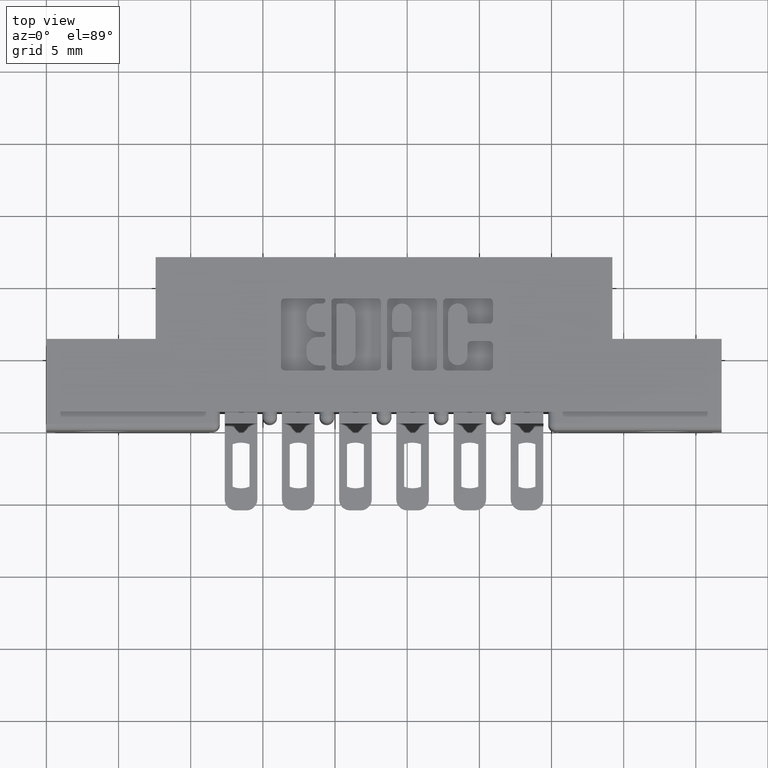
[diagram: clean part render]
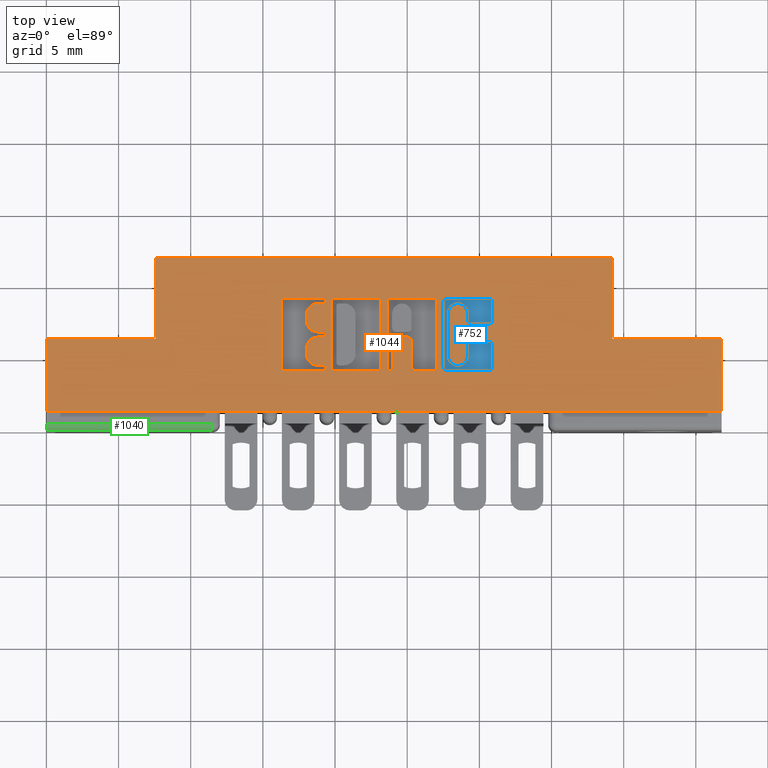
[diagram: same view with three faces highlighted in distinct colors, each labeled with its STEP entity id]
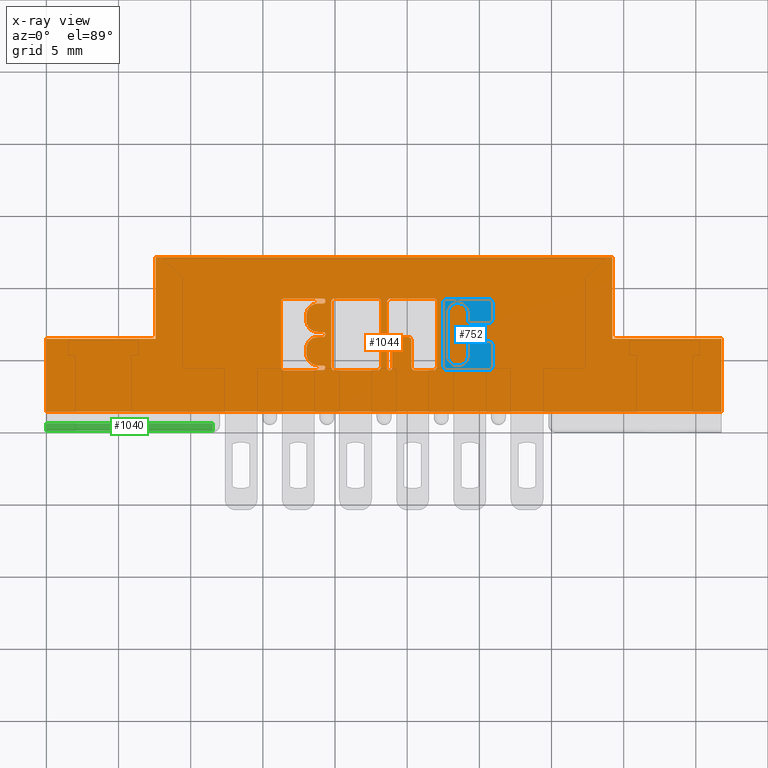
[diagram: x-ray of the same camera — body ghosted, the three highlighted faces saturated]
A machine part, top view with three faces highlighted in distinct colors.
The next image is the same camera in x-ray (body ghosted, the three faces saturated) — at least one of them is partly hidden behind the body in this view.
Their STEP definitions:

[orange] entity #1044 — the highlighted planar face has unit normal (0, 0, -1).
#10 = EDGE_CURVE ( 'NONE', #3765, #10131, #852, .T. ) ;
#55 = FACE_BOUND ( 'NONE', #9245, .T. ) ;
#77 = VERTEX_POINT ( 'NONE', #9998 ) ;
#135 = CARTESIAN_POINT ( 'NONE',  ( 0.7867707099630104600, 0.3503410318342100000, 0.0000000000000000000 ) ) ;
#146 = CIRCLE ( 'NONE', #5011, 0.009815670203806754800 ) ;
#149 = ORIENTED_EDGE ( 'NONE', *, *, #3264, .T. ) ;
#159 = VERTEX_POINT ( 'NONE', #10293 ) ;
#163 = VERTEX_POINT ( 'NONE', #5569 ) ;
#173 = DIRECTION ( 'NONE',  ( 0.0000000000000000000, 1.000000000000000000, -0.0000000000000000000 ) ) ;
#185 = DIRECTION ( 'NONE',  ( 1.000000000000000000, 0.0000000000000000000, 0.0000000000000000000 ) ) ;
#265 = CARTESIAN_POINT ( 'NONE',  ( 0.7610045756779737500, 0.2620000000000202700, 0.0000000000000000000 ) ) ;
#277 = DIRECTION ( 'NONE',  ( 1.000000000000000000, 0.0000000000000000000, 0.0000000000000000000 ) ) ;
#321 = DIRECTION ( 'NONE',  ( -0.0000000000000000000, 0.0000000000000000000, 1.000000000000000000 ) ) ;
#334 = DIRECTION ( 'NONE',  ( 1.000000000000000000, 0.0000000000000000000, 0.0000000000000000000 ) ) ;
#365 = DIRECTION ( 'NONE',  ( -1.000000000000000000, 0.0000000000000000000, 0.0000000000000000000 ) ) ;
#395 = CIRCLE ( 'NONE', #4903, 0.009815670203803340800 ) ;
#427 = CARTESIAN_POINT ( 'NONE',  ( 0.0000000000000000000, 0.3601567020380326800, 0.0000000000000000000 ) ) ;
#433 = VERTEX_POINT ( 'NONE', #2955 ) ;
#519 = LINE ( 'NONE', #6025, #8094 ) ;
#615 = DIRECTION ( 'NONE',  ( 1.000000000000000000, 0.0000000000000000000, 0.0000000000000000000 ) ) ;
#666 = DIRECTION ( 'NONE',  ( -0.0000000000000000000, 0.0000000000000000000, 1.000000000000000000 ) ) ;
#669 = CARTESIAN_POINT ( 'NONE',  ( 1.842000000000000700, 0.05099999999999999700, 0.0000000000000000000 ) ) ;
#676 = AXIS2_PLACEMENT_3D ( 'NONE', #2531, #7273, #6436 ) ;
#680 = CARTESIAN_POINT ( 'NONE',  ( 1.092038053301299700, 0.3503410318342100000, 0.0000000000000000000 ) ) ;
#697 = ORIENTED_EDGE ( 'NONE', *, *, #4044, .F. ) ;
#723 = LINE ( 'NONE', #8234, #7935 ) ;
#761 = EDGE_LOOP ( 'NONE', ( #9948, #5364, #6437, #697, #7409, #10905, #3839, #7196 ) ) ;
#767 = ORIENTED_EDGE ( 'NONE', *, *, #2493, .F. ) ;
#797 = EDGE_LOOP ( 'NONE', ( #3835, #2006, #9997, #5686, #827, #8413, #2825, #7833 ) ) ;
#815 = VECTOR ( 'NONE', #365, 39.37007874015748100 ) ;
#823 = LINE ( 'NONE', #11469, #10315 ) ;
#827 = ORIENTED_EDGE ( 'NONE', *, *, #9205, .F. ) ;
#852 = CIRCLE ( 'NONE', #7446, 0.009815670203796511200 ) ;
#919 = VERTEX_POINT ( 'NONE', #4568 ) ;
#921 = FACE_OUTER_BOUND ( 'NONE', #797, .T. ) ;
#937 = ORIENTED_EDGE ( 'NONE', *, *, #1703, .F. ) ;
#942 = FACE_BOUND ( 'NONE', #4103, .T. ) ;
#970 = VECTOR ( 'NONE', #10074, 39.37007874015748100 ) ;
#975 = VECTOR ( 'NONE', #173, 39.37007874015748100 ) ;
#990 = CARTESIAN_POINT ( 'NONE',  ( 0.7092269153529280300, 0.0000000000000000000, 0.0000000000000000000 ) ) ;
#1035 = VERTEX_POINT ( 'NONE', #11194 ) ;
#1044 = ADVANCED_FACE ( 'NONE', ( #1307, #55, #921, #1676, #942 ), #4955, .F. ) ;
#1045 = ORIENTED_EDGE ( 'NONE', *, *, #5929, .F. ) ;
#1132 = VERTEX_POINT ( 'NONE', #6007 ) ;
#1182 = ORIENTED_EDGE ( 'NONE', *, *, #10444, .F. ) ;
#1188 = VERTEX_POINT ( 'NONE', #8691 ) ;
#1212 = VERTEX_POINT ( 'NONE', #8863 ) ;
#1230 = ORIENTED_EDGE ( 'NONE', *, *, #3366, .F. ) ;
#1263 = CIRCLE ( 'NONE', #3082, 0.006870969142662229500 ) ;
#1307 = FACE_BOUND ( 'NONE', #8540, .T. ) ;
#1309 = CARTESIAN_POINT ( 'NONE',  ( 0.9531463199174504700, 0.2551290308573486200, 0.0000000000000000000 ) ) ;
#1333 = VERTEX_POINT ( 'NONE', #6822 ) ;
#1336 = LINE ( 'NONE', #10299, #970 ) ;
#1355 = CARTESIAN_POINT ( 'NONE',  ( 1.217678631909940400, 0.1736589681657829100, 0.0000000000000000000 ) ) ;
#1363 = VERTEX_POINT ( 'NONE', #4243 ) ;
#1387 = CIRCLE ( 'NONE', #4663, 0.009815670203796920600 ) ;
#1391 = CARTESIAN_POINT ( 'NONE',  ( 0.0000000000000000000, 0.3601567020380510000, 0.0000000000000000000 ) ) ;
#1397 = CARTESIAN_POINT ( 'NONE',  ( 0.9124112885716693100, 0.3503410318342100000, 0.0000000000000000000 ) ) ;
#1402 = VERTEX_POINT ( 'NONE', #4475 ) ;
#1460 = CARTESIAN_POINT ( 'NONE',  ( 0.7092269153529280300, 0.2089953808994903200, 0.0000000000000000000 ) ) ;
#1492 = EDGE_CURVE ( 'NONE', #1663, #8109, #8887, .T. ) ;
#1495 = AXIS2_PLACEMENT_3D ( 'NONE', #3649, #3619, #3604 ) ;
#1518 = VECTOR ( 'NONE', #3088, 39.37007874015748100 ) ;
#1537 = VERTEX_POINT ( 'NONE', #5088 ) ;
#1628 = VECTOR ( 'NONE', #6637, 39.37007874015748100 ) ;
#1641 = LINE ( 'NONE', #5568, #1628 ) ;
#1663 = VERTEX_POINT ( 'NONE', #6407 ) ;
#1676 = FACE_BOUND ( 'NONE', #761, .T. ) ;
#1693 = CARTESIAN_POINT ( 'NONE',  ( 0.6400264404161156700, 0.0000000000000000000, 0.0000000000000000000 ) ) ;
#1694 = ORIENTED_EDGE ( 'NONE', *, *, #6141, .F. ) ;
#1701 = LINE ( 'NONE', #3076, #10964 ) ;
#1703 = EDGE_CURVE ( 'NONE', #5471, #1663, #9077, .T. ) ;
#1720 = CARTESIAN_POINT ( 'NONE',  ( 0.7769550397591695700, 0.1736589681657899100, 0.0000000000000000000 ) ) ;
#1744 = VERTEX_POINT ( 'NONE', #2865 ) ;
#1745 = LINE ( 'NONE', #5543, #10619 ) ;
#1755 = LINE ( 'NONE', #990, #10816 ) ;
#1779 = ORIENTED_EDGE ( 'NONE', *, *, #9736, .T. ) ;
#1807 = CARTESIAN_POINT ( 'NONE',  ( 1.207862961706132300, 0.3503410318342108900, 0.0000000000000000000 ) ) ;
#1820 = VERTEX_POINT ( 'NONE', #2084 ) ;
#1900 = CIRCLE ( 'NONE', #4427, 0.009815670203840084000 ) ;
#1901 = VERTEX_POINT ( 'NONE', #2132 ) ;
#1914 = VERTEX_POINT ( 'NONE', #10061 ) ;
#1932 = DIRECTION ( 'NONE',  ( 1.000000000000000000, 0.0000000000000000000, 0.0000000000000000000 ) ) ;
#1936 = VERTEX_POINT ( 'NONE', #6979 ) ;
#1938 = CARTESIAN_POINT ( 'NONE',  ( 1.092038053301265700, 0.1638432979619831300, 0.0000000000000000000 ) ) ;
#1972 = AXIS2_PLACEMENT_3D ( 'NONE', #9161, #9126, #9084 ) ;
#1991 = VECTOR ( 'NONE', #9269, 39.37007874015748100 ) ;
#1998 = CARTESIAN_POINT ( 'NONE',  ( -0.0000000000000000000, 0.2909562271012335900, 0.0000000000000000000 ) ) ;
#2006 = ORIENTED_EDGE ( 'NONE', *, *, #2348, .F. ) ;
#2009 = ORIENTED_EDGE ( 'NONE', *, *, #2182, .T. ) ;
#2024 = CARTESIAN_POINT ( 'NONE',  ( 0.9958444853039849500, 0.2453133606535433700, 0.0000000000000000000 ) ) ;
#2027 = CIRCLE ( 'NONE', #4368, 0.006870969142648570200 ) ;
#2028 = VERTEX_POINT ( 'NONE', #5606 ) ;
#2029 = DIRECTION ( 'NONE',  ( 1.000000000000000000, 0.0000000000000000000, 0.0000000000000000000 ) ) ;
#2037 = VERTEX_POINT ( 'NONE', #11355 ) ;
#2050 = ORIENTED_EDGE ( 'NONE', *, *, #6190, .F. ) ;
#2081 = ORIENTED_EDGE ( 'NONE', *, *, #4994, .F. ) ;
#2084 = CARTESIAN_POINT ( 'NONE',  ( 0.7769550397591695700, 0.3503410318342100000, 0.0000000000000000000 ) ) ;
#2103 = CIRCLE ( 'NONE', #5121, 0.009815670203805798900 ) ;
#2132 = CARTESIAN_POINT ( 'NONE',  ( 0.7541336065353516600, 0.3464147637527356100, 0.0000000000000000000 ) ) ;
#2148 = DIRECTION ( 'NONE',  ( -0.0000000000000000000, 0.0000000000000000000, 1.000000000000000000 ) ) ;
#2162 = CARTESIAN_POINT ( 'NONE',  ( 0.7610045756779980600, 0.1707142671046479000, 0.0000000000000000000 ) ) ;
#2173 = VERTEX_POINT ( 'NONE', #6163 ) ;
#2182 = EDGE_CURVE ( 'NONE', #6968, #1212, #4976, .T. ) ;
#2186 = VECTOR ( 'NONE', #10241, 39.37007874015748100 ) ;
#2209 = EDGE_CURVE ( 'NONE', #11117, #433, #4550, .T. ) ;
#2272 = VERTEX_POINT ( 'NONE', #6398 ) ;
#2303 = VECTOR ( 'NONE', #1932, 39.37007874015748100 ) ;
#2319 = CARTESIAN_POINT ( 'NONE',  ( 0.7406370600050843400, 0.2551290308573567800, 0.0000000000000000000 ) ) ;
#2324 = EDGE_CURVE ( 'NONE', #4287, #2173, #4026, .T. ) ;
#2348 = EDGE_CURVE ( 'NONE', #8801, #11117, #3964, .T. ) ;
#2353 = DIRECTION ( 'NONE',  ( 0.0000000000000000000, 1.000000000000000000, -0.0000000000000000000 ) ) ;
#2362 = AXIS2_PLACEMENT_3D ( 'NONE', #7336, #7043, #7159 ) ;
#2366 = LINE ( 'NONE', #6413, #11179 ) ;
#2371 = CARTESIAN_POINT ( 'NONE',  ( 0.7406370600050843400, 0.2237188862052004700, 0.0000000000000000000 ) ) ;
#2493 = EDGE_CURVE ( 'NONE', #9976, #2028, #3083, .T. ) ;
#2500 = EDGE_CURVE ( 'NONE', #1901, #163, #3132, .T. ) ;
#2503 = EDGE_CURVE ( 'NONE', #2272, #1901, #3342, .T. ) ;
#2513 = VERTEX_POINT ( 'NONE', #2024 ) ;
#2518 = EDGE_CURVE ( 'NONE', #10952, #1333, #3034, .T. ) ;
#2531 = CARTESIAN_POINT ( 'NONE',  ( 0.9025956183678282000, 0.3503410318342098900, 0.0000000000000000000 ) ) ;
#2546 = EDGE_CURVE ( 'NONE', #1333, #4287, #2723, .T. ) ;
#2583 = CARTESIAN_POINT ( 'NONE',  ( -0.0000000000000000000, 0.1638432979619831300, 0.0000000000000000000 ) ) ;
#2594 = DIRECTION ( 'NONE',  ( 1.000000000000000000, 0.0000000000000000000, 0.0000000000000000000 ) ) ;
#2635 = DIRECTION ( 'NONE',  ( -0.0000000000000000000, 0.0000000000000000000, 1.000000000000000000 ) ) ;
#2648 = EDGE_CURVE ( 'NONE', #2173, #11046, #2103, .T. ) ;
#2665 = CIRCLE ( 'NONE', #4004, 0.009815670203788042300 ) ;
#2668 = EDGE_CURVE ( 'NONE', #11046, #3714, #1641, .T. ) ;
#2708 = VERTEX_POINT ( 'NONE', #3158 ) ;
#2723 = CIRCLE ( 'NONE', #5178, 0.009815670203822599700 ) ;
#2763 = DIRECTION ( 'NONE',  ( -1.000000000000000000, 0.0000000000000000000, 0.0000000000000000000 ) ) ;
#2784 = DIRECTION ( 'NONE',  ( -0.0000000000000000000, 0.0000000000000000000, 1.000000000000000000 ) ) ;
#2819 = ORIENTED_EDGE ( 'NONE', *, *, #3636, .F. ) ;
#2820 = DIRECTION ( 'NONE',  ( 1.000000000000000000, 0.0000000000000000000, 0.0000000000000000000 ) ) ;
#2825 = ORIENTED_EDGE ( 'NONE', *, *, #9346, .F. ) ;
#2847 = ORIENTED_EDGE ( 'NONE', *, *, #2546, .F. ) ;
#2865 = CARTESIAN_POINT ( 'NONE',  ( 1.055229290037010800, 0.1638432979619845200, 0.0000000000000000000 ) ) ;
#2906 = ORIENTED_EDGE ( 'NONE', *, *, #1492, .F. ) ;
#2936 = VECTOR ( 'NONE', #2763, 39.37007874015748100 ) ;
#2955 = CARTESIAN_POINT ( 'NONE',  ( 0.0000000000000000000, 0.05099999999999999700, 0.0000000000000000000 ) ) ;
#2976 = VECTOR ( 'NONE', #4211, 39.37007874015748100 ) ;
#2997 = VECTOR ( 'NONE', #2820, 39.37007874015748100 ) ;
#3034 = LINE ( 'NONE', #427, #2936 ) ;
#3045 = VECTOR ( 'NONE', #8432, 39.37007874015748100 ) ;
#3062 = EDGE_CURVE ( 'NONE', #5224, #6968, #8418, .T. ) ;
#3076 = CARTESIAN_POINT ( 'NONE',  ( -0.0000000000000000000, 0.1638432979619831300, 0.0000000000000000000 ) ) ;
#3082 = AXIS2_PLACEMENT_3D ( 'NONE', #7902, #7888, #7820 ) ;
#3083 = CIRCLE ( 'NONE', #5241, 0.006870969142657995000 ) ;
#3088 = DIRECTION ( 'NONE',  ( -1.000000000000000000, 0.0000000000000000000, 0.0000000000000000000 ) ) ;
#3132 = CIRCLE ( 'NONE', #5244, 0.006870969142648570200 ) ;
#3140 = EDGE_CURVE ( 'NONE', #10818, #1936, #146, .T. ) ;
#3158 = CARTESIAN_POINT ( 'NONE',  ( 0.7092269153529097100, 0.3002811137948582800, 0.0000000000000000000 ) ) ;
#3167 = VERTEX_POINT ( 'NONE', #4019 ) ;
#3173 = VERTEX_POINT ( 'NONE', #3643 ) ;
#3197 = CIRCLE ( 'NONE', #4468, 0.03141014465221592800 ) ;
#3247 = ORIENTED_EDGE ( 'NONE', *, *, #3992, .T. ) ;
#3253 = ORIENTED_EDGE ( 'NONE', *, *, #5431, .F. ) ;
#3264 = EDGE_CURVE ( 'NONE', #3765, #6354, #5250, .T. ) ;
#3279 = VERTEX_POINT ( 'NONE', #10922 ) ;
#3335 = ORIENTED_EDGE ( 'NONE', *, *, #6104, .T. ) ;
#3342 = LINE ( 'NONE', #3737, #2997 ) ;
#3366 = EDGE_CURVE ( 'NONE', #3714, #9403, #3705, .T. ) ;
#3375 = VERTEX_POINT ( 'NONE', #10832 ) ;
#3377 = ORIENTED_EDGE ( 'NONE', *, *, #9231, .F. ) ;
#3383 = EDGE_CURVE ( 'NONE', #3375, #3645, #8006, .T. ) ;
#3439 = EDGE_CURVE ( 'NONE', #5460, #1035, #2366, .T. ) ;
#3441 = CARTESIAN_POINT ( 'NONE',  ( 0.0000000000000000000, 0.2499999999999999700, 0.0000000000000000000 ) ) ;
#3503 = CIRCLE ( 'NONE', #4096, 0.009815670203806345400 ) ;
#3556 = EDGE_CURVE ( 'NONE', #7691, #3279, #395, .T. ) ;
#3585 = ORIENTED_EDGE ( 'NONE', *, *, #10, .F. ) ;
#3596 = EDGE_CURVE ( 'NONE', #7776, #1035, #5401, .T. ) ;
#3604 = DIRECTION ( 'NONE',  ( 1.000000000000000000, 0.0000000000000000000, 0.0000000000000000000 ) ) ;
#3619 = DIRECTION ( 'NONE',  ( -0.0000000000000000000, 0.0000000000000000000, 1.000000000000000000 ) ) ;
#3620 = DIRECTION ( 'NONE',  ( -1.000000000000000000, 0.0000000000000000000, 0.0000000000000000000 ) ) ;
#3629 = LINE ( 'NONE', #4274, #2976 ) ;
#3633 = DIRECTION ( 'NONE',  ( 1.000000000000000000, -0.0000000000000000000, 0.0000000000000000000 ) ) ;
#3636 = EDGE_CURVE ( 'NONE', #7776, #8338, #1755, .T. ) ;
#3643 = CARTESIAN_POINT ( 'NONE',  ( 1.082222383097458900, 0.1736589681657899100, 0.0000000000000000000 ) ) ;
#3645 = VERTEX_POINT ( 'NONE', #3939 ) ;
#3649 = CARTESIAN_POINT ( 'NONE',  ( 1.207862961706167400, 0.3007718973050385600, 0.0000000000000000000 ) ) ;
#3669 = LINE ( 'NONE', #9255, #6233 ) ;
#3700 = DIRECTION ( 'NONE',  ( 0.0000000000000000000, 1.000000000000000000, -0.0000000000000000000 ) ) ;
#3705 = CIRCLE ( 'NONE', #4934, 0.006870969142662229500 ) ;
#3708 = CIRCLE ( 'NONE', #4727, 0.02625691779517367100 ) ;
#3714 = VERTEX_POINT ( 'NONE', #7861 ) ;
#3737 = CARTESIAN_POINT ( 'NONE',  ( -0.0000000000000000000, 0.3464147637527356100, 0.0000000000000000000 ) ) ;
#3749 = DIRECTION ( 'NONE',  ( 1.000000000000000000, 0.0000000000000000000, 0.0000000000000000000 ) ) ;
#3765 = VERTEX_POINT ( 'NONE', #9845 ) ;
#3776 = VERTEX_POINT ( 'NONE', #7931 ) ;
#3789 = AXIS2_PLACEMENT_3D ( 'NONE', #135, #321, #185 ) ;
#3800 = ORIENTED_EDGE ( 'NONE', *, *, #4350, .T. ) ;
#3821 = CARTESIAN_POINT ( 'NONE',  ( 0.7092269153529097100, 0.3150046191005197400, 0.0000000000000000000 ) ) ;
#3835 = ORIENTED_EDGE ( 'NONE', *, *, #2209, .F. ) ;
#3839 = ORIENTED_EDGE ( 'NONE', *, *, #6888, .F. ) ;
#3884 = ORIENTED_EDGE ( 'NONE', *, *, #4653, .F. ) ;
#3905 = VECTOR ( 'NONE', #8356, 39.37007874015748100 ) ;
#3931 = CARTESIAN_POINT ( 'NONE',  ( 0.9958444853039849500, 0.1736589681657878000, 0.0000000000000000000 ) ) ;
#3939 = CARTESIAN_POINT ( 'NONE',  ( 1.065044960240807000, 0.1736589681657807500, 0.0000000000000000000 ) ) ;
#3964 = LINE ( 'NONE', #6828, #3905 ) ;
#3970 = EDGE_CURVE ( 'NONE', #1744, #3279, #5253, .T. ) ;
#3976 = VECTOR ( 'NONE', #6596, 39.37007874015748100 ) ;
#3982 = VERTEX_POINT ( 'NONE', #6068 ) ;
#3987 = AXIS2_PLACEMENT_3D ( 'NONE', #10472, #10359, #10347 ) ;
#3992 = EDGE_CURVE ( 'NONE', #5045, #8338, #4948, .T. ) ;
#4004 = AXIS2_PLACEMENT_3D ( 'NONE', #11428, #11309, #11244 ) ;
#4005 = VERTEX_POINT ( 'NONE', #7686 ) ;
#4019 = CARTESIAN_POINT ( 'NONE',  ( 0.2979999999999999900, 0.2499999999999999700, 0.0000000000000000000 ) ) ;
#4026 = LINE ( 'NONE', #1693, #3976 ) ;
#4032 = CARTESIAN_POINT ( 'NONE',  ( 0.0000000000000000000, 0.2433502266127574900, 0.0000000000000000000 ) ) ;
#4033 = VERTEX_POINT ( 'NONE', #1938 ) ;
#4044 = EDGE_CURVE ( 'NONE', #1936, #4224, #7042, .T. ) ;
#4049 = DIRECTION ( 'NONE',  ( -0.0000000000000000000, 0.0000000000000000000, 1.000000000000000000 ) ) ;
#4064 = AXIS2_PLACEMENT_3D ( 'NONE', #6670, #6661, #6985 ) ;
#4096 = AXIS2_PLACEMENT_3D ( 'NONE', #6872, #6802, #6779 ) ;
#4103 = EDGE_LOOP ( 'NONE', ( #149, #3253, #4145, #5982, #4171, #5649, #6746, #3800, #7190, #2009, #10173, #767, #3335, #3585 ) ) ;
#4116 = AXIS2_PLACEMENT_3D ( 'NONE', #8870, #9018, #8981 ) ;
#4125 = VERTEX_POINT ( 'NONE', #265 ) ;
#4134 = CIRCLE ( 'NONE', #4116, 0.009815670203806754800 ) ;
#4140 = DIRECTION ( 'NONE',  ( -0.0000000000000000000, 0.0000000000000000000, 1.000000000000000000 ) ) ;
#4145 = ORIENTED_EDGE ( 'NONE', *, *, #3383, .T. ) ;
#4148 = EDGE_CURVE ( 'NONE', #1537, #4005, #823, .T. ) ;
#4150 = ORIENTED_EDGE ( 'NONE', *, *, #2668, .F. ) ;
#4152 = LINE ( 'NONE', #8706, #6380 ) ;
#4163 = VECTOR ( 'NONE', #3620, 39.37007874015748100 ) ;
#4164 = DIRECTION ( 'NONE',  ( -0.0000000000000000000, 0.0000000000000000000, 1.000000000000000000 ) ) ;
#4171 = ORIENTED_EDGE ( 'NONE', *, *, #3970, .T. ) ;
#4186 = EDGE_CURVE ( 'NONE', #5471, #7315, #3708, .T. ) ;
#4208 = CARTESIAN_POINT ( 'NONE',  ( 0.7541336065353357900, 0.1707142671046479000, 0.0000000000000000000 ) ) ;
#4211 = DIRECTION ( 'NONE',  ( -0.0000000000000000000, 1.000000000000000000, -0.0000000000000000000 ) ) ;
#4224 = VERTEX_POINT ( 'NONE', #6533 ) ;
#4243 = CARTESIAN_POINT ( 'NONE',  ( 0.2979999999999999300, 0.4729999999999999800, 0.0000000000000000000 ) ) ;
#4263 = AXIS2_PLACEMENT_3D ( 'NONE', #680, #666, #615 ) ;
#4274 = CARTESIAN_POINT ( 'NONE',  ( 0.2979999999999999900, 0.2499999999999999700, 0.0000000000000000000 ) ) ;
#4281 = LINE ( 'NONE', #4032, #1518 ) ;
#4287 = VERTEX_POINT ( 'NONE', #8191 ) ;
#4307 = EDGE_CURVE ( 'NONE', #1914, #8095, #10810, .T. ) ;
#4312 = EDGE_CURVE ( 'NONE', #5045, #1402, #1745, .T. ) ;
#4328 = AXIS2_PLACEMENT_3D ( 'NONE', #9510, #10873, #10856 ) ;
#4340 = ORIENTED_EDGE ( 'NONE', *, *, #2503, .F. ) ;
#4345 = AXIS2_PLACEMENT_3D ( 'NONE', #10105, #10068, #9000 ) ;
#4350 = EDGE_CURVE ( 'NONE', #2513, #5224, #1387, .T. ) ;
#4368 = AXIS2_PLACEMENT_3D ( 'NONE', #5797, #6826, #6783 ) ;
#4373 = DIRECTION ( 'NONE',  ( -1.000000000000000000, 0.0000000000000000000, 0.0000000000000000000 ) ) ;
#4427 = AXIS2_PLACEMENT_3D ( 'NONE', #1807, #4049, #9881 ) ;
#4468 = AXIS2_PLACEMENT_3D ( 'NONE', #10500, #4164, #6801 ) ;
#4475 = CARTESIAN_POINT ( 'NONE',  ( 0.7541336064153890700, 0.2551290308573567800, 0.0000000000000000000 ) ) ;
#4495 = VECTOR ( 'NONE', #7704, 39.37007874015748100 ) ;
#4520 = ORIENTED_EDGE ( 'NONE', *, *, #5257, .F. ) ;
#4550 = LINE ( 'NONE', #8651, #4495 ) ;
#4551 = CARTESIAN_POINT ( 'NONE',  ( 0.7406370600050843400, 0.3002811137948582800, 0.0000000000000000000 ) ) ;
#4556 = AXIS2_PLACEMENT_3D ( 'NONE', #4551, #10047, #277 ) ;
#4568 = CARTESIAN_POINT ( 'NONE',  ( 0.0000000000000000000, 0.2499999999999999700, 0.0000000000000000000 ) ) ;
#4612 = AXIS2_PLACEMENT_3D ( 'NONE', #10756, #8971, #334 ) ;
#4639 = EDGE_CURVE ( 'NONE', #1402, #4125, #8824, .T. ) ;
#4653 = EDGE_CURVE ( 'NONE', #5428, #2037, #10501, .T. ) ;
#4657 = VECTOR ( 'NONE', #9318, 39.37007874015748100 ) ;
#4663 = AXIS2_PLACEMENT_3D ( 'NONE', #10813, #7574, #6202 ) ;
#4718 = CARTESIAN_POINT ( 'NONE',  ( 0.6498421106199189200, 0.1638432979619849400, 0.0000000000000000000 ) ) ;
#4727 = AXIS2_PLACEMENT_3D ( 'NONE', #5758, #8010, #9168 ) ;
#4734 = VERTEX_POINT ( 'NONE', #5938 ) ;
#4735 = EDGE_CURVE ( 'NONE', #2708, #2037, #5377, .T. ) ;
#4772 = EDGE_CURVE ( 'NONE', #1212, #2028, #9930, .T. ) ;
#4775 = AXIS2_PLACEMENT_3D ( 'NONE', #2371, #6924, #9054 ) ;
#4861 = AXIS2_PLACEMENT_3D ( 'NONE', #11198, #6708, #10175 ) ;
#4872 = ORIENTED_EDGE ( 'NONE', *, *, #5144, .F. ) ;
#4902 = EDGE_CURVE ( 'NONE', #2708, #7974, #4152, .T. ) ;
#4903 = AXIS2_PLACEMENT_3D ( 'NONE', #10200, #4140, #8033 ) ;
#4934 = AXIS2_PLACEMENT_3D ( 'NONE', #4208, #2784, #2594 ) ;
#4948 = CIRCLE ( 'NONE', #4775, 0.03141014465215624000 ) ;
#4955 = PLANE ( 'NONE',  #5636 ) ;
#4963 = LINE ( 'NONE', #7984, #7051 ) ;
#4966 = EDGE_CURVE ( 'NONE', #2272, #7974, #3197, .T. ) ;
#4976 = CIRCLE ( 'NONE', #5275, 0.009815670203803203800 ) ;
#4994 = EDGE_CURVE ( 'NONE', #1132, #7835, #10021, .T. ) ;
#5011 = AXIS2_PLACEMENT_3D ( 'NONE', #6197, #2635, #8573 ) ;
#5039 = LINE ( 'NONE', #1998, #2303 ) ;
#5045 = VERTEX_POINT ( 'NONE', #2319 ) ;
#5087 = CARTESIAN_POINT ( 'NONE',  ( 1.082222383097458900, 0.3503410318342100000, 0.0000000000000000000 ) ) ;
#5088 = CARTESIAN_POINT ( 'NONE',  ( 1.544000000000000700, 0.2499999999999999700, 0.0000000000000000000 ) ) ;
#5121 = AXIS2_PLACEMENT_3D ( 'NONE', #9836, #6705, #5408 ) ;
#5144 = EDGE_CURVE ( 'NONE', #7835, #77, #1900, .T. ) ;
#5178 = AXIS2_PLACEMENT_3D ( 'NONE', #5857, #10715, #10220 ) ;
#5188 = LINE ( 'NONE', #11181, #11035 ) ;
#5198 = EDGE_CURVE ( 'NONE', #77, #9117, #8247, .T. ) ;
#5224 = VERTEX_POINT ( 'NONE', #5249 ) ;
#5241 = AXIS2_PLACEMENT_3D ( 'NONE', #8946, #8857, #6175 ) ;
#5244 = AXIS2_PLACEMENT_3D ( 'NONE', #8760, #2148, #2029 ) ;
#5249 = CARTESIAN_POINT ( 'NONE',  ( 0.9860288151001884700, 0.2551290308573497300, 0.0000000000000000000 ) ) ;
#5250 = LINE ( 'NONE', #10631, #10903 ) ;
#5253 = LINE ( 'NONE', #8690, #7305 ) ;
#5257 = EDGE_CURVE ( 'NONE', #163, #10952, #2027, .T. ) ;
#5263 = DIRECTION ( 'NONE',  ( 0.0000000000000000000, -1.000000000000000000, 0.0000000000000000000 ) ) ;
#5275 = AXIS2_PLACEMENT_3D ( 'NONE', #11335, #9563, #5709 ) ;
#5279 = CARTESIAN_POINT ( 'NONE',  ( 0.9394043816321276900, 0.3503410318342100000, 0.0000000000000000000 ) ) ;
#5318 = DIRECTION ( 'NONE',  ( 1.000000000000000000, 0.0000000000000000000, 0.0000000000000000000 ) ) ;
#5334 = DIRECTION ( 'NONE',  ( -0.0000000000000000000, 0.0000000000000000000, 1.000000000000000000 ) ) ;
#5348 = EDGE_CURVE ( 'NONE', #1744, #3645, #10797, .T. ) ;
#5364 = ORIENTED_EDGE ( 'NONE', *, *, #5710, .F. ) ;
#5377 = CIRCLE ( 'NONE', #4556, 0.03141014465217454400 ) ;
#5401 = CIRCLE ( 'NONE', #4861, 0.03141014465218178200 ) ;
#5408 = DIRECTION ( 'NONE',  ( 1.000000000000000000, 0.0000000000000000000, 0.0000000000000000000 ) ) ;
#5428 = VERTEX_POINT ( 'NONE', #8567 ) ;
#5431 = EDGE_CURVE ( 'NONE', #3375, #6354, #6371, .T. ) ;
#5460 = VERTEX_POINT ( 'NONE', #9917 ) ;
#5471 = VERTEX_POINT ( 'NONE', #10249 ) ;
#5481 = DIRECTION ( 'NONE',  ( 0.0000000000000000000, 1.000000000000000000, -0.0000000000000000000 ) ) ;
#5486 = ORIENTED_EDGE ( 'NONE', *, *, #8367, .F. ) ;
#5491 = LINE ( 'NONE', #5818, #9795 ) ;
#5540 = EDGE_CURVE ( 'NONE', #9117, #8577, #11455, .T. ) ;
#5541 = AXIS2_PLACEMENT_3D ( 'NONE', #6889, #7495, #7424 ) ;
#5543 = CARTESIAN_POINT ( 'NONE',  ( -0.0000000000000000000, 0.2551290308573567800, 0.0000000000000000000 ) ) ;
#5568 = CARTESIAN_POINT ( 'NONE',  ( -1.072942192934067400E-015, 0.1638432979619806600, 0.0000000000000000000 ) ) ;
#5569 = CARTESIAN_POINT ( 'NONE',  ( 0.7610045756780000600, 0.3532857328953861700, 0.0000000000000000000 ) ) ;
#5596 = CARTESIAN_POINT ( 'NONE',  ( 1.217678631909972400, 0.0000000000000000000, 0.0000000000000000000 ) ) ;
#5606 = CARTESIAN_POINT ( 'NONE',  ( 0.9433306497136472200, 0.1707142671046479000, 0.0000000000000000000 ) ) ;
#5632 = DIRECTION ( 'NONE',  ( 0.0000000000000000000, 1.000000000000000000, -0.0000000000000000000 ) ) ;
#5636 = AXIS2_PLACEMENT_3D ( 'NONE', #7018, #6458, #11427 ) ;
#5649 = ORIENTED_EDGE ( 'NONE', *, *, #3556, .F. ) ;
#5671 = VECTOR ( 'NONE', #4373, 39.37007874015748100 ) ;
#5686 = ORIENTED_EDGE ( 'NONE', *, *, #4148, .T. ) ;
#5702 = DIRECTION ( 'NONE',  ( 1.000000000000000000, 0.0000000000000000000, 0.0000000000000000000 ) ) ;
#5709 = DIRECTION ( 'NONE',  ( 1.000000000000000000, 0.0000000000000000000, 0.0000000000000000000 ) ) ;
#5710 = EDGE_CURVE ( 'NONE', #1188, #7779, #3669, .T. ) ;
#5758 = CARTESIAN_POINT ( 'NONE',  ( 1.122221239177992400, 0.3201578459575295000, 0.0000000000000000000 ) ) ;
#5797 = CARTESIAN_POINT ( 'NONE',  ( 0.7541336065353515500, 0.3532857328953861700, 0.0000000000000000000 ) ) ;
#5818 = CARTESIAN_POINT ( 'NONE',  ( 0.9295887114283312200, 0.0000000000000000000, 0.0000000000000000000 ) ) ;
#5857 = CARTESIAN_POINT ( 'NONE',  ( 0.6498421106199383500, 0.3503410318342100000, 0.0000000000000000000 ) ) ;
#5866 = EDGE_CURVE ( 'NONE', #8577, #3173, #7971, .T. ) ;
#5929 = EDGE_CURVE ( 'NONE', #4033, #159, #1701, .T. ) ;
#5938 = CARTESIAN_POINT ( 'NONE',  ( 1.207862961706167400, 0.2909562271012335900, 0.0000000000000000000 ) ) ;
#5952 = EDGE_CURVE ( 'NONE', #3173, #4033, #4134, .T. ) ;
#5982 = ORIENTED_EDGE ( 'NONE', *, *, #5348, .F. ) ;
#5993 = EDGE_CURVE ( 'NONE', #11296, #9811, #10785, .T. ) ;
#6007 = CARTESIAN_POINT ( 'NONE',  ( 1.217678631909972400, 0.3007718973050385600, 0.0000000000000000000 ) ) ;
#6021 = EDGE_CURVE ( 'NONE', #159, #11296, #3503, .T. ) ;
#6025 = CARTESIAN_POINT ( 'NONE',  ( 0.9958444853039849500, 0.0000000000000000000, 0.0000000000000000000 ) ) ;
#6068 = CARTESIAN_POINT ( 'NONE',  ( 1.158293827176967400, 0.2433502266127574900, 0.0000000000000000000 ) ) ;
#6077 = CIRCLE ( 'NONE', #676, 0.009815670203841039800 ) ;
#6078 = CARTESIAN_POINT ( 'NONE',  ( 1.148478156973179200, 0.2038421540424529300, 0.0000000000000000000 ) ) ;
#6104 = EDGE_CURVE ( 'NONE', #9976, #10131, #5491, .T. ) ;
#6141 = EDGE_CURVE ( 'NONE', #9811, #9592, #11447, .T. ) ;
#6163 = CARTESIAN_POINT ( 'NONE',  ( 0.6400264404161156700, 0.1736589681657899100, 0.0000000000000000000 ) ) ;
#6175 = DIRECTION ( 'NONE',  ( 1.000000000000000000, 0.0000000000000000000, 0.0000000000000000000 ) ) ;
#6180 = ORIENTED_EDGE ( 'NONE', *, *, #4639, .F. ) ;
#6190 = EDGE_CURVE ( 'NONE', #9592, #3982, #4281, .T. ) ;
#6191 = ORIENTED_EDGE ( 'NONE', *, *, #5993, .F. ) ;
#6197 = CARTESIAN_POINT ( 'NONE',  ( 0.7867707099629762700, 0.1736589681657899100, 0.0000000000000000000 ) ) ;
#6202 = DIRECTION ( 'NONE',  ( 1.000000000000000000, 0.0000000000000000000, 0.0000000000000000000 ) ) ;
#6216 = ORIENTED_EDGE ( 'NONE', *, *, #2500, .F. ) ;
#6233 = VECTOR ( 'NONE', #5632, 39.37007874015748100 ) ;
#6248 = DIRECTION ( 'NONE',  ( 0.0000000000000000000, 1.000000000000000000, -0.0000000000000000000 ) ) ;
#6286 = ORIENTED_EDGE ( 'NONE', *, *, #4186, .T. ) ;
#6354 = VERTEX_POINT ( 'NONE', #6434 ) ;
#6371 = CIRCLE ( 'NONE', #4328, 0.009815670203795690700 ) ;
#6380 = VECTOR ( 'NONE', #2353, 39.37007874015748100 ) ;
#6390 = DIRECTION ( 'NONE',  ( 1.000000000000000000, 0.0000000000000000000, 0.0000000000000000000 ) ) ;
#6395 = DIRECTION ( 'NONE',  ( -1.000000000000000000, 0.0000000000000000000, 0.0000000000000000000 ) ) ;
#6398 = CARTESIAN_POINT ( 'NONE',  ( 0.7406370600051257500, 0.3464147637527356100, 0.0000000000000000000 ) ) ;
#6407 = CARTESIAN_POINT ( 'NONE',  ( 1.148478156973166100, 0.3007718973050451700, 0.0000000000000000000 ) ) ;
#6413 = CARTESIAN_POINT ( 'NONE',  ( -2.111779678676719100E-014, 0.1775852362472204700, 0.0000000000000000000 ) ) ;
#6421 = EDGE_CURVE ( 'NONE', #3982, #3776, #2665, .T. ) ;
#6434 = CARTESIAN_POINT ( 'NONE',  ( 1.055229290037014200, 0.3601567020380065400, 0.0000000000000000000 ) ) ;
#6436 = DIRECTION ( 'NONE',  ( 1.000000000000000000, 0.0000000000000000000, 0.0000000000000000000 ) ) ;
#6437 = ORIENTED_EDGE ( 'NONE', *, *, #6491, .F. ) ;
#6458 = DIRECTION ( 'NONE',  ( 0.0000000000000000000, 0.0000000000000000000, -1.000000000000000000 ) ) ;
#6491 = EDGE_CURVE ( 'NONE', #4224, #1188, #10775, .T. ) ;
#6533 = CARTESIAN_POINT ( 'NONE',  ( 0.9025956183678624000, 0.1638432979619831300, 0.0000000000000000000 ) ) ;
#6549 = CARTESIAN_POINT ( 'NONE',  ( 1.148478156973166100, 0.0000000000000000000, 0.0000000000000000000 ) ) ;
#6556 = CARTESIAN_POINT ( 'NONE',  ( 0.9295887114283312200, 0.3503410318342100000, 0.0000000000000000000 ) ) ;
#6596 = DIRECTION ( 'NONE',  ( 0.0000000000000000000, -1.000000000000000000, 0.0000000000000000000 ) ) ;
#6635 = EDGE_CURVE ( 'NONE', #7691, #2513, #519, .T. ) ;
#6637 = DIRECTION ( 'NONE',  ( 1.000000000000000000, 6.548587621710595000E-015, 0.0000000000000000000 ) ) ;
#6661 = DIRECTION ( 'NONE',  ( -0.0000000000000000000, 0.0000000000000000000, 1.000000000000000000 ) ) ;
#6670 = CARTESIAN_POINT ( 'NONE',  ( 1.207862961706153400, 0.2335345564089703600, 0.0000000000000000000 ) ) ;
#6705 = DIRECTION ( 'NONE',  ( -0.0000000000000000000, 0.0000000000000000000, 1.000000000000000000 ) ) ;
#6708 = DIRECTION ( 'NONE',  ( -0.0000000000000000000, 0.0000000000000000000, 1.000000000000000000 ) ) ;
#6746 = ORIENTED_EDGE ( 'NONE', *, *, #6635, .T. ) ;
#6779 = DIRECTION ( 'NONE',  ( 1.000000000000000000, 0.0000000000000000000, 0.0000000000000000000 ) ) ;
#6783 = DIRECTION ( 'NONE',  ( 1.000000000000000000, 0.0000000000000000000, 0.0000000000000000000 ) ) ;
#6801 = DIRECTION ( 'NONE',  ( 1.000000000000000000, 0.0000000000000000000, 0.0000000000000000000 ) ) ;
#6802 = DIRECTION ( 'NONE',  ( -0.0000000000000000000, 0.0000000000000000000, 1.000000000000000000 ) ) ;
#6822 = CARTESIAN_POINT ( 'NONE',  ( 0.6498421106199383500, 0.3601567020380326800, 0.0000000000000000000 ) ) ;
#6826 = DIRECTION ( 'NONE',  ( -0.0000000000000000000, 0.0000000000000000000, 1.000000000000000000 ) ) ;
#6828 = CARTESIAN_POINT ( 'NONE',  ( 1.842000000000000700, 0.4729999999999999800, 0.0000000000000000000 ) ) ;
#6872 = CARTESIAN_POINT ( 'NONE',  ( 1.207862961706134500, 0.1736589681657899100, 0.0000000000000000000 ) ) ;
#6888 = EDGE_CURVE ( 'NONE', #8095, #1820, #9058, .T. ) ;
#6889 = CARTESIAN_POINT ( 'NONE',  ( 1.158293827176977600, 0.3007718973050451700, 0.0000000000000000000 ) ) ;
#6924 = DIRECTION ( 'NONE',  ( -0.0000000000000000000, 0.0000000000000000000, 1.000000000000000000 ) ) ;
#6968 = VERTEX_POINT ( 'NONE', #1309 ) ;
#6979 = CARTESIAN_POINT ( 'NONE',  ( 0.7867707099629762700, 0.1638432979619831300, 0.0000000000000000000 ) ) ;
#6985 = DIRECTION ( 'NONE',  ( 1.000000000000000000, 0.0000000000000000000, 0.0000000000000000000 ) ) ;
#6989 = ORIENTED_EDGE ( 'NONE', *, *, #5866, .F. ) ;
#7018 = CARTESIAN_POINT ( 'NONE',  ( 0.0000000000000000000, 0.4729999999999999800, 0.0000000000000000000 ) ) ;
#7042 = LINE ( 'NONE', #2583, #9115 ) ;
#7043 = DIRECTION ( 'NONE',  ( -0.0000000000000000000, 0.0000000000000000000, 1.000000000000000000 ) ) ;
#7051 = VECTOR ( 'NONE', #7658, 39.37007874015748100 ) ;
#7159 = DIRECTION ( 'NONE',  ( 1.000000000000000000, 0.0000000000000000000, 0.0000000000000000000 ) ) ;
#7190 = ORIENTED_EDGE ( 'NONE', *, *, #3062, .T. ) ;
#7196 = ORIENTED_EDGE ( 'NONE', *, *, #4307, .F. ) ;
#7273 = DIRECTION ( 'NONE',  ( -0.0000000000000000000, 0.0000000000000000000, 1.000000000000000000 ) ) ;
#7298 = DIRECTION ( 'NONE',  ( 0.0000000000000000000, -1.000000000000000000, 0.0000000000000000000 ) ) ;
#7305 = VECTOR ( 'NONE', #6395, 39.37007874015748100 ) ;
#7315 = VERTEX_POINT ( 'NONE', #10290 ) ;
#7336 = CARTESIAN_POINT ( 'NONE',  ( 0.7541336065353102500, 0.2620000000000202700, 0.0000000000000000000 ) ) ;
#7390 = ORIENTED_EDGE ( 'NONE', *, *, #7461, .F. ) ;
#7409 = ORIENTED_EDGE ( 'NONE', *, *, #3140, .F. ) ;
#7424 = DIRECTION ( 'NONE',  ( 1.000000000000000000, 0.0000000000000000000, 0.0000000000000000000 ) ) ;
#7431 = VECTOR ( 'NONE', #5263, 39.37007874015748100 ) ;
#7446 = AXIS2_PLACEMENT_3D ( 'NONE', #5279, #5334, #5318 ) ;
#7461 = EDGE_CURVE ( 'NONE', #8736, #7315, #9431, .T. ) ;
#7495 = DIRECTION ( 'NONE',  ( -0.0000000000000000000, 0.0000000000000000000, 1.000000000000000000 ) ) ;
#7533 = CARTESIAN_POINT ( 'NONE',  ( 0.9295887114283312200, 0.1707142671046479000, 0.0000000000000000000 ) ) ;
#7574 = DIRECTION ( 'NONE',  ( -0.0000000000000000000, 0.0000000000000000000, 1.000000000000000000 ) ) ;
#7618 = DIRECTION ( 'NONE',  ( 0.0000000000000000000, -1.000000000000000000, 0.0000000000000000000 ) ) ;
#7658 = DIRECTION ( 'NONE',  ( 1.000000000000000000, 0.0000000000000000000, 0.0000000000000000000 ) ) ;
#7664 = CARTESIAN_POINT ( 'NONE',  ( 0.0000000000000000000, 0.2688709691426837700, 0.0000000000000000000 ) ) ;
#7684 = EDGE_CURVE ( 'NONE', #3167, #1363, #3629, .T. ) ;
#7686 = CARTESIAN_POINT ( 'NONE',  ( 1.544000000000000700, 0.4729999999999999800, 0.0000000000000000000 ) ) ;
#7691 = VERTEX_POINT ( 'NONE', #3931 ) ;
#7704 = DIRECTION ( 'NONE',  ( -1.000000000000000000, -0.0000000000000000000, -7.017285087388212900E-023 ) ) ;
#7776 = VERTEX_POINT ( 'NONE', #1460 ) ;
#7779 = VERTEX_POINT ( 'NONE', #1397 ) ;
#7820 = DIRECTION ( 'NONE',  ( 1.000000000000000000, 0.0000000000000000000, 0.0000000000000000000 ) ) ;
#7833 = ORIENTED_EDGE ( 'NONE', *, *, #9631, .T. ) ;
#7835 = VERTEX_POINT ( 'NONE', #11378 ) ;
#7861 = CARTESIAN_POINT ( 'NONE',  ( 0.7541336064154146000, 0.1638432979619856000, 0.0000000000000000000 ) ) ;
#7888 = DIRECTION ( 'NONE',  ( -0.0000000000000000000, 0.0000000000000000000, 1.000000000000000000 ) ) ;
#7902 = CARTESIAN_POINT ( 'NONE',  ( 0.7541336065353357900, 0.1707142671046479000, 0.0000000000000000000 ) ) ;
#7931 = CARTESIAN_POINT ( 'NONE',  ( 1.148478156973179200, 0.2335345564089686100, 0.0000000000000000000 ) ) ;
#7935 = VECTOR ( 'NONE', #7618, 39.37007874015748100 ) ;
#7948 = ORIENTED_EDGE ( 'NONE', *, *, #6421, .F. ) ;
#7957 = ORIENTED_EDGE ( 'NONE', *, *, #4902, .F. ) ;
#7971 = LINE ( 'NONE', #9463, #9693 ) ;
#7974 = VERTEX_POINT ( 'NONE', #3821 ) ;
#7984 = CARTESIAN_POINT ( 'NONE',  ( 0.0000000000000000000, 0.4729999999999999800, 0.0000000000000000000 ) ) ;
#8006 = LINE ( 'NONE', #9932, #3045 ) ;
#8010 = DIRECTION ( 'NONE',  ( -0.0000000000000000000, 0.0000000000000000000, 1.000000000000000000 ) ) ;
#8023 = VECTOR ( 'NONE', #3633, 39.37007874015748100 ) ;
#8033 = DIRECTION ( 'NONE',  ( 1.000000000000000000, 0.0000000000000000000, 0.0000000000000000000 ) ) ;
#8063 = ORIENTED_EDGE ( 'NONE', *, *, #2518, .F. ) ;
#8093 = ORIENTED_EDGE ( 'NONE', *, *, #10582, .F. ) ;
#8094 = VECTOR ( 'NONE', #5481, 39.37007874015748100 ) ;
#8095 = VERTEX_POINT ( 'NONE', #11043 ) ;
#8109 = VERTEX_POINT ( 'NONE', #10929 ) ;
#8191 = CARTESIAN_POINT ( 'NONE',  ( 0.6400264404161156700, 0.3503410318342100000, 0.0000000000000000000 ) ) ;
#8230 = ORIENTED_EDGE ( 'NONE', *, *, #3596, .T. ) ;
#8234 = CARTESIAN_POINT ( 'NONE',  ( 1.148478156973179200, 0.0000000000000000000, 0.0000000000000000000 ) ) ;
#8247 = LINE ( 'NONE', #1391, #5671 ) ;
#8338 = VERTEX_POINT ( 'NONE', #8840 ) ;
#8356 = DIRECTION ( 'NONE',  ( -0.0000000000000000000, -1.000000000000000000, -0.0000000000000000000 ) ) ;
#8367 = EDGE_CURVE ( 'NONE', #9403, #5460, #1263, .T. ) ;
#8413 = ORIENTED_EDGE ( 'NONE', *, *, #7684, .F. ) ;
#8418 = LINE ( 'NONE', #11410, #10229 ) ;
#8432 = DIRECTION ( 'NONE',  ( 0.0000000000000000000, -1.000000000000000000, 0.0000000000000000000 ) ) ;
#8488 = VERTEX_POINT ( 'NONE', #6078 ) ;
#8540 = EDGE_LOOP ( 'NONE', ( #1182, #8093, #2906, #937, #6286, #7390, #1779, #10313, #7948, #2050, #1694, #6191, #9069, #1045, #9944, #6989, #9352, #9595, #4872, #2081 ) ) ;
#8567 = CARTESIAN_POINT ( 'NONE',  ( 0.7541336065353102500, 0.2688709691426837700, 0.0000000000000000000 ) ) ;
#8568 = CARTESIAN_POINT ( 'NONE',  ( 1.217678631909940400, 0.2335345564089703600, 0.0000000000000000000 ) ) ;
#8573 = DIRECTION ( 'NONE',  ( 1.000000000000000000, 0.0000000000000000000, 0.0000000000000000000 ) ) ;
#8577 = VERTEX_POINT ( 'NONE', #5087 ) ;
#8651 = CARTESIAN_POINT ( 'NONE',  ( 0.4729999999999998600, 0.05099999999999999700, 0.0000000000000000000 ) ) ;
#8691 = CARTESIAN_POINT ( 'NONE',  ( 0.9124112885716693100, 0.1736589681657899100, 0.0000000000000000000 ) ) ;
#8690 = CARTESIAN_POINT ( 'NONE',  ( 0.0000000000000000000, 0.1638432979619845200, 0.0000000000000000000 ) ) ;
#8706 = CARTESIAN_POINT ( 'NONE',  ( 0.7092269153529097100, 0.0000000000000000000, 0.0000000000000000000 ) ) ;
#8736 = VERTEX_POINT ( 'NONE', #10371 ) ;
#8760 = CARTESIAN_POINT ( 'NONE',  ( 0.7541336065353515500, 0.3532857328953861700, 0.0000000000000000000 ) ) ;
#8782 = CIRCLE ( 'NONE', #1495, 0.009815670203804980100 ) ;
#8801 = VERTEX_POINT ( 'NONE', #10510 ) ;
#8824 = CIRCLE ( 'NONE', #4612, 0.006870969142663458500 ) ;
#8832 = EDGE_CURVE ( 'NONE', #1537, #8801, #11104, .T. ) ;
#8840 = CARTESIAN_POINT ( 'NONE',  ( 0.7092269153529280300, 0.2237188862052004700, 0.0000000000000000000 ) ) ;
#8857 = DIRECTION ( 'NONE',  ( -0.0000000000000000000, 0.0000000000000000000, 1.000000000000000000 ) ) ;
#8863 = CARTESIAN_POINT ( 'NONE',  ( 0.9433306497136472200, 0.2453133606535455300, 0.0000000000000000000 ) ) ;
#8870 = CARTESIAN_POINT ( 'NONE',  ( 1.092038053301265700, 0.1736589681657899100, 0.0000000000000000000 ) ) ;
#8887 = CIRCLE ( 'NONE', #5541, 0.009815670203811535700 ) ;
#8946 = CARTESIAN_POINT ( 'NONE',  ( 0.9364596805709872700, 0.1707142671046479000, 0.0000000000000000000 ) ) ;
#8971 = DIRECTION ( 'NONE',  ( -0.0000000000000000000, 0.0000000000000000000, 1.000000000000000000 ) ) ;
#8981 = DIRECTION ( 'NONE',  ( 1.000000000000000000, 0.0000000000000000000, 0.0000000000000000000 ) ) ;
#9000 = DIRECTION ( 'NONE',  ( 1.000000000000000000, 0.0000000000000000000, 0.0000000000000000000 ) ) ;
#9005 = ORIENTED_EDGE ( 'NONE', *, *, #2324, .F. ) ;
#9018 = DIRECTION ( 'NONE',  ( -0.0000000000000000000, 0.0000000000000000000, 1.000000000000000000 ) ) ;
#9054 = DIRECTION ( 'NONE',  ( 1.000000000000000000, 0.0000000000000000000, 0.0000000000000000000 ) ) ;
#9058 = CIRCLE ( 'NONE', #3789, 0.009815670203840902800 ) ;
#9069 = ORIENTED_EDGE ( 'NONE', *, *, #6021, .F. ) ;
#9077 = LINE ( 'NONE', #6549, #9244 ) ;
#9084 = DIRECTION ( 'NONE',  ( 1.000000000000000000, 0.0000000000000000000, 0.0000000000000000000 ) ) ;
#9115 = VECTOR ( 'NONE', #3749, 39.37007874015748100 ) ;
#9117 = VERTEX_POINT ( 'NONE', #10160 ) ;
#9126 = DIRECTION ( 'NONE',  ( -0.0000000000000000000, 0.0000000000000000000, 1.000000000000000000 ) ) ;
#9161 = CARTESIAN_POINT ( 'NONE',  ( 1.122221239177999100, 0.2038421540424529300, 0.0000000000000000000 ) ) ;
#9168 = DIRECTION ( 'NONE',  ( 1.000000000000000000, 0.0000000000000000000, 0.0000000000000000000 ) ) ;
#9205 = EDGE_CURVE ( 'NONE', #1363, #4005, #4963, .T. ) ;
#9231 = EDGE_CURVE ( 'NONE', #4125, #5428, #9609, .T. ) ;
#9237 = ORIENTED_EDGE ( 'NONE', *, *, #4735, .T. ) ;
#9244 = VECTOR ( 'NONE', #7298, 39.37007874015748100 ) ;
#9245 = EDGE_LOOP ( 'NONE', ( #9720, #7957, #9237, #3884, #3377, #6180, #10822, #3247, #2819, #8230, #10972, #5486, #1230, #4150, #10091, #9005, #2847, #8063, #4520, #6216, #4340 ) ) ;
#9255 = CARTESIAN_POINT ( 'NONE',  ( 0.9124112885716693100, 0.0000000000000000000, 0.0000000000000000000 ) ) ;
#9269 = DIRECTION ( 'NONE',  ( 0.0000000000000000000, 1.000000000000000000, -0.0000000000000000000 ) ) ;
#9318 = DIRECTION ( 'NONE',  ( 1.000000000000000000, -0.0000000000000000000, 0.0000000000000000000 ) ) ;
#9346 = EDGE_CURVE ( 'NONE', #919, #3167, #10324, .T. ) ;
#9352 = ORIENTED_EDGE ( 'NONE', *, *, #5540, .F. ) ;
#9403 = VERTEX_POINT ( 'NONE', #2162 ) ;
#9418 = CARTESIAN_POINT ( 'NONE',  ( 1.095964321382818700, 0.0000000000000000000, 0.0000000000000000000 ) ) ;
#9431 = LINE ( 'NONE', #9418, #1991 ) ;
#9443 = DIRECTION ( 'NONE',  ( -1.000000000000000000, -3.427012734660361200E-014, 0.0000000000000000000 ) ) ;
#9463 = CARTESIAN_POINT ( 'NONE',  ( 1.082222383097458900, 0.0000000000000000000, 0.0000000000000000000 ) ) ;
#9510 = CARTESIAN_POINT ( 'NONE',  ( 1.055229290037011900, 0.3503410318342102800, 0.0000000000000000000 ) ) ;
#9563 = DIRECTION ( 'NONE',  ( -0.0000000000000000000, 0.0000000000000000000, 1.000000000000000000 ) ) ;
#9592 = VERTEX_POINT ( 'NONE', #10953 ) ;
#9595 = ORIENTED_EDGE ( 'NONE', *, *, #5198, .F. ) ;
#9609 = CIRCLE ( 'NONE', #2362, 0.006870969142663458500 ) ;
#9631 = EDGE_CURVE ( 'NONE', #919, #433, #1336, .T. ) ;
#9679 = CARTESIAN_POINT ( 'NONE',  ( 0.0000000000000000000, 0.2499999999999999700, 0.0000000000000000000 ) ) ;
#9693 = VECTOR ( 'NONE', #10718, 39.37007874015748100 ) ;
#9720 = ORIENTED_EDGE ( 'NONE', *, *, #4966, .T. ) ;
#9736 = EDGE_CURVE ( 'NONE', #8736, #8488, #11258, .T. ) ;
#9795 = VECTOR ( 'NONE', #6248, 39.37007874015748100 ) ;
#9811 = VERTEX_POINT ( 'NONE', #8568 ) ;
#9828 = CARTESIAN_POINT ( 'NONE',  ( 0.7541336065353515500, 0.3601567020380326800, 0.0000000000000000000 ) ) ;
#9836 = CARTESIAN_POINT ( 'NONE',  ( 0.6498421106199224800, 0.1736589681657899100, 0.0000000000000000000 ) ) ;
#9845 = CARTESIAN_POINT ( 'NONE',  ( 0.9394043816321276900, 0.3601567020380065400, 0.0000000000000000000 ) ) ;
#9881 = DIRECTION ( 'NONE',  ( 1.000000000000000000, 0.0000000000000000000, 0.0000000000000000000 ) ) ;
#9909 = CARTESIAN_POINT ( 'NONE',  ( 0.0000000000000000000, 0.3601567020380510000, 0.0000000000000000000 ) ) ;
#9917 = CARTESIAN_POINT ( 'NONE',  ( 0.7541336064154146000, 0.1775852362473101500, 0.0000000000000000000 ) ) ;
#9930 = LINE ( 'NONE', #10214, #7431 ) ;
#9932 = CARTESIAN_POINT ( 'NONE',  ( 1.065044960240807000, 0.0000000000000000000, 0.0000000000000000000 ) ) ;
#9944 = ORIENTED_EDGE ( 'NONE', *, *, #5952, .F. ) ;
#9948 = ORIENTED_EDGE ( 'NONE', *, *, #11145, .F. ) ;
#9949 = CARTESIAN_POINT ( 'NONE',  ( 1.217678631909940400, 0.0000000000000000000, 0.0000000000000000000 ) ) ;
#9976 = VERTEX_POINT ( 'NONE', #7533 ) ;
#9997 = ORIENTED_EDGE ( 'NONE', *, *, #8832, .F. ) ;
#9998 = CARTESIAN_POINT ( 'NONE',  ( 1.207862961706168700, 0.3601567020380510000, 0.0000000000000000000 ) ) ;
#10021 = LINE ( 'NONE', #5596, #2186 ) ;
#10047 = DIRECTION ( 'NONE',  ( -0.0000000000000000000, 0.0000000000000000000, 1.000000000000000000 ) ) ;
#10061 = CARTESIAN_POINT ( 'NONE',  ( 0.9025956183678963700, 0.3601567020380510000, 0.0000000000000000000 ) ) ;
#10068 = DIRECTION ( 'NONE',  ( -0.0000000000000000000, 0.0000000000000000000, 1.000000000000000000 ) ) ;
#10074 = DIRECTION ( 'NONE',  ( -0.0000000000000000000, -1.000000000000000000, -0.0000000000000000000 ) ) ;
#10091 = ORIENTED_EDGE ( 'NONE', *, *, #2648, .F. ) ;
#10105 = CARTESIAN_POINT ( 'NONE',  ( 1.055229290037010800, 0.1736589681657807500, 0.0000000000000000000 ) ) ;
#10131 = VERTEX_POINT ( 'NONE', #6556 ) ;
#10160 = CARTESIAN_POINT ( 'NONE',  ( 1.092038053301299700, 0.3601567020380510000, 0.0000000000000000000 ) ) ;
#10173 = ORIENTED_EDGE ( 'NONE', *, *, #4772, .T. ) ;
#10175 = DIRECTION ( 'NONE',  ( 1.000000000000000000, 0.0000000000000000000, 0.0000000000000000000 ) ) ;
#10200 = CARTESIAN_POINT ( 'NONE',  ( 1.005660155507788200, 0.1736589681657878000, 0.0000000000000000000 ) ) ;
#10214 = CARTESIAN_POINT ( 'NONE',  ( 0.9433306497136472200, 0.0000000000000000000, 0.0000000000000000000 ) ) ;
#10220 = DIRECTION ( 'NONE',  ( 1.000000000000000000, 0.0000000000000000000, 0.0000000000000000000 ) ) ;
#10229 = VECTOR ( 'NONE', #9443, 39.37007874015748100 ) ;
#10241 = DIRECTION ( 'NONE',  ( 0.0000000000000000000, 1.000000000000000000, -0.0000000000000000000 ) ) ;
#10249 = CARTESIAN_POINT ( 'NONE',  ( 1.148478156973166100, 0.3201578454992598000, 0.0000000000000000000 ) ) ;
#10290 = CARTESIAN_POINT ( 'NONE',  ( 1.095964321382818700, 0.3201578459575295000, 0.0000000000000000000 ) ) ;
#10293 = CARTESIAN_POINT ( 'NONE',  ( 1.207862961706134500, 0.1638432979619831300, 0.0000000000000000000 ) ) ;
#10299 = CARTESIAN_POINT ( 'NONE',  ( 0.0000000000000000000, 0.4729999999999999800, 0.0000000000000000000 ) ) ;
#10313 = ORIENTED_EDGE ( 'NONE', *, *, #10961, .F. ) ;
#10315 = VECTOR ( 'NONE', #10539, 39.37007874015748100 ) ;
#10324 = LINE ( 'NONE', #3441, #8023 ) ;
#10342 = DIRECTION ( 'NONE',  ( 1.000000000000000000, 0.0000000000000000000, 0.0000000000000000000 ) ) ;
#10347 = DIRECTION ( 'NONE',  ( 1.000000000000000000, 0.0000000000000000000, 0.0000000000000000000 ) ) ;
#10359 = DIRECTION ( 'NONE',  ( -0.0000000000000000000, 0.0000000000000000000, 1.000000000000000000 ) ) ;
#10371 = CARTESIAN_POINT ( 'NONE',  ( 1.095964321382818700, 0.2038421540424529300, 0.0000000000000000000 ) ) ;
#10444 = EDGE_CURVE ( 'NONE', #4734, #1132, #8782, .T. ) ;
#10472 = CARTESIAN_POINT ( 'NONE',  ( 0.9025956183678624000, 0.1736589681657899100, 0.0000000000000000000 ) ) ;
#10500 = CARTESIAN_POINT ( 'NONE',  ( 0.7406370600051257500, 0.3150046191005197400, 0.0000000000000000000 ) ) ;
#10501 = LINE ( 'NONE', #7664, #815 ) ;
#10510 = CARTESIAN_POINT ( 'NONE',  ( 1.842000000000000700, 0.2499999999999999700, 0.0000000000000000000 ) ) ;
#10539 = DIRECTION ( 'NONE',  ( -0.0000000000000000000, 1.000000000000000000, -0.0000000000000000000 ) ) ;
#10582 = EDGE_CURVE ( 'NONE', #8109, #4734, #5039, .T. ) ;
#10619 = VECTOR ( 'NONE', #6390, 39.37007874015748100 ) ;
#10631 = CARTESIAN_POINT ( 'NONE',  ( -0.0000000000000000000, 0.3601567020380065400, 0.0000000000000000000 ) ) ;
#10715 = DIRECTION ( 'NONE',  ( -0.0000000000000000000, 0.0000000000000000000, 1.000000000000000000 ) ) ;
#10718 = DIRECTION ( 'NONE',  ( 0.0000000000000000000, -1.000000000000000000, 0.0000000000000000000 ) ) ;
#10732 = DIRECTION ( 'NONE',  ( 0.0000000000000000000, -1.000000000000000000, 0.0000000000000000000 ) ) ;
#10756 = CARTESIAN_POINT ( 'NONE',  ( 0.7541336065353102500, 0.2620000000000202700, 0.0000000000000000000 ) ) ;
#10775 = CIRCLE ( 'NONE', #3987, 0.009815670203806891800 ) ;
#10785 = LINE ( 'NONE', #9949, #975 ) ;
#10797 = CIRCLE ( 'NONE', #4345, 0.009815670203796237100 ) ;
#10810 = LINE ( 'NONE', #9909, #4163 ) ;
#10813 = CARTESIAN_POINT ( 'NONE',  ( 0.9860288151001880300, 0.2453133606535527200, 0.0000000000000000000 ) ) ;
#10816 = VECTOR ( 'NONE', #3700, 39.37007874015748100 ) ;
#10818 = VERTEX_POINT ( 'NONE', #1720 ) ;
#10822 = ORIENTED_EDGE ( 'NONE', *, *, #4312, .F. ) ;
#10832 = CARTESIAN_POINT ( 'NONE',  ( 1.065044960240807000, 0.3503410318342009600, 0.0000000000000000000 ) ) ;
#10850 = EDGE_CURVE ( 'NONE', #1820, #10818, #5188, .T. ) ;
#10856 = DIRECTION ( 'NONE',  ( 1.000000000000000000, 0.0000000000000000000, 0.0000000000000000000 ) ) ;
#10873 = DIRECTION ( 'NONE',  ( -0.0000000000000000000, 0.0000000000000000000, 1.000000000000000000 ) ) ;
#10903 = VECTOR ( 'NONE', #5702, 39.37007874015748100 ) ;
#10905 = ORIENTED_EDGE ( 'NONE', *, *, #10850, .F. ) ;
#10922 = CARTESIAN_POINT ( 'NONE',  ( 1.005660155507786000, 0.1638432979619845200, 0.0000000000000000000 ) ) ;
#10929 = CARTESIAN_POINT ( 'NONE',  ( 1.158293827176977600, 0.2909562271012335900, 0.0000000000000000000 ) ) ;
#10952 = VERTEX_POINT ( 'NONE', #9828 ) ;
#10953 = CARTESIAN_POINT ( 'NONE',  ( 1.207862961706156900, 0.2433502266127574900, 0.0000000000000000000 ) ) ;
#10961 = EDGE_CURVE ( 'NONE', #3776, #8488, #723, .T. ) ;
#10964 = VECTOR ( 'NONE', #10342, 39.37007874015748100 ) ;
#10972 = ORIENTED_EDGE ( 'NONE', *, *, #3439, .F. ) ;
#11035 = VECTOR ( 'NONE', #10732, 39.37007874015748100 ) ;
#11043 = CARTESIAN_POINT ( 'NONE',  ( 0.7867707099630104600, 0.3601567020380510000, 0.0000000000000000000 ) ) ;
#11046 = VERTEX_POINT ( 'NONE', #4718 ) ;
#11104 = LINE ( 'NONE', #9679, #4657 ) ;
#11117 = VERTEX_POINT ( 'NONE', #669 ) ;
#11145 = EDGE_CURVE ( 'NONE', #7779, #1914, #6077, .T. ) ;
#11179 = VECTOR ( 'NONE', #11188, 39.37007874015748100 ) ;
#11181 = CARTESIAN_POINT ( 'NONE',  ( 0.7769550397591695700, 0.0000000000000000000, 0.0000000000000000000 ) ) ;
#11188 = DIRECTION ( 'NONE',  ( -1.000000000000000000, -1.189163988687022500E-013, 0.0000000000000000000 ) ) ;
#11194 = CARTESIAN_POINT ( 'NONE',  ( 0.7406370600051098700, 0.1775852362473085400, 0.0000000000000000000 ) ) ;
#11198 = CARTESIAN_POINT ( 'NONE',  ( 0.7406370600051098700, 0.2089953808994903200, 0.0000000000000000000 ) ) ;
#11244 = DIRECTION ( 'NONE',  ( 1.000000000000000000, 0.0000000000000000000, 0.0000000000000000000 ) ) ;
#11258 = CIRCLE ( 'NONE', #1972, 0.02625691779518022500 ) ;
#11296 = VERTEX_POINT ( 'NONE', #1355 ) ;
#11309 = DIRECTION ( 'NONE',  ( -0.0000000000000000000, 0.0000000000000000000, 1.000000000000000000 ) ) ;
#11335 = CARTESIAN_POINT ( 'NONE',  ( 0.9531463199174504700, 0.2453133606535455300, 0.0000000000000000000 ) ) ;
#11355 = CARTESIAN_POINT ( 'NONE',  ( 0.7406370600050843400, 0.2688709691426837700, 0.0000000000000000000 ) ) ;
#11378 = CARTESIAN_POINT ( 'NONE',  ( 1.217678631909972400, 0.3503410318341947400, 0.0000000000000000000 ) ) ;
#11410 = CARTESIAN_POINT ( 'NONE',  ( -8.743304377295779200E-015, 0.2551290308573159200, 0.0000000000000000000 ) ) ;
#11427 = DIRECTION ( 'NONE',  ( -1.000000000000000000, 0.0000000000000000000, -0.0000000000000000000 ) ) ;
#11428 = CARTESIAN_POINT ( 'NONE',  ( 1.158293827176967400, 0.2335345564089694700, 0.0000000000000000000 ) ) ;
#11447 = CIRCLE ( 'NONE', #4064, 0.009815670203787086500 ) ;
#11455 = CIRCLE ( 'NONE', #4263, 0.009815670203840902800 ) ;
#11469 = CARTESIAN_POINT ( 'NONE',  ( 1.544000000000000700, 0.2499999999999999700, 0.0000000000000000000 ) ) ;

[blue] entity #752 — the highlighted planar face has unit normal (0, 0, 1).
#30 = ORIENTED_EDGE ( 'NONE', *, *, #8186, .T. ) ;
#59 = ORIENTED_EDGE ( 'NONE', *, *, #9779, .T. ) ;
#76 = VECTOR ( 'NONE', #6378, 39.37007874015748100 ) ;
#168 = VERTEX_POINT ( 'NONE', #5445 ) ;
#181 = VERTEX_POINT ( 'NONE', #5016 ) ;
#195 = VECTOR ( 'NONE', #11299, 39.37007874015748100 ) ;
#224 = VERTEX_POINT ( 'NONE', #4853 ) ;
#235 = CARTESIAN_POINT ( 'NONE',  ( 0.0000000000000000000, 0.2433502266127574900, -0.01000000000000000000 ) ) ;
#300 = DIRECTION ( 'NONE',  ( -1.000000000000000000, 0.0000000000000000000, 0.0000000000000000000 ) ) ;
#362 = ORIENTED_EDGE ( 'NONE', *, *, #11148, .T. ) ;
#742 = DIRECTION ( 'NONE',  ( 0.0000000000000000000, -1.000000000000000000, 0.0000000000000000000 ) ) ;
#752 = ADVANCED_FACE ( 'NONE', ( #2184 ), #8296, .T. ) ;
#843 = CARTESIAN_POINT ( 'NONE',  ( 1.148478156973166100, 0.0000000000000000000, -0.01000000000000000000 ) ) ;
#1140 = ORIENTED_EDGE ( 'NONE', *, *, #7633, .T. ) ;
#1163 = ORIENTED_EDGE ( 'NONE', *, *, #7994, .T. ) ;
#1211 = DIRECTION ( 'NONE',  ( 1.000000000000000000, 0.0000000000000000000, 0.0000000000000000000 ) ) ;
#1312 = CARTESIAN_POINT ( 'NONE',  ( 0.0000000000000000000, 0.3601567020380510000, -0.01000000000000000000 ) ) ;
#1490 = CARTESIAN_POINT ( 'NONE',  ( 1.207862961706168700, 0.3601567020380510000, -0.01000000000000000000 ) ) ;
#1597 = ORIENTED_EDGE ( 'NONE', *, *, #4023, .T. ) ;
#1687 = EDGE_CURVE ( 'NONE', #6271, #224, #8210, .T. ) ;
#1752 = AXIS2_PLACEMENT_3D ( 'NONE', #6751, #6738, #6671 ) ;
#1822 = VERTEX_POINT ( 'NONE', #3009 ) ;
#1867 = LINE ( 'NONE', #8921, #7012 ) ;
#2031 = DIRECTION ( 'NONE',  ( -0.0000000000000000000, 0.0000000000000000000, 1.000000000000000000 ) ) ;
#2041 = AXIS2_PLACEMENT_3D ( 'NONE', #9462, #9442, #9423 ) ;
#2100 = CARTESIAN_POINT ( 'NONE',  ( 1.095964321382818700, 0.2038421540424529300, -0.01000000000000000000 ) ) ;
#2126 = EDGE_CURVE ( 'NONE', #9608, #2872, #6502, .T. ) ;
#2184 = FACE_OUTER_BOUND ( 'NONE', #4463, .T. ) ;
#2276 = DIRECTION ( 'NONE',  ( 0.0000000000000000000, -1.000000000000000000, 0.0000000000000000000 ) ) ;
#2304 = AXIS2_PLACEMENT_3D ( 'NONE', #6065, #5962, #5932 ) ;
#2372 = ORIENTED_EDGE ( 'NONE', *, *, #3048, .T. ) ;
#2381 = VECTOR ( 'NONE', #3470, 39.37007874015748100 ) ;
#2559 = CARTESIAN_POINT ( 'NONE',  ( 1.082222383097458900, 0.0000000000000000000, -0.01000000000000000000 ) ) ;
#2573 = CARTESIAN_POINT ( 'NONE',  ( 1.095964321382818700, 0.0000000000000000000, -0.01000000000000000000 ) ) ;
#2817 = EDGE_CURVE ( 'NONE', #6331, #168, #5112, .T. ) ;
#2860 = CARTESIAN_POINT ( 'NONE',  ( 1.217678631909940400, 0.2335345564089703600, -0.01000000000000000000 ) ) ;
#2872 = VERTEX_POINT ( 'NONE', #9807 ) ;
#2909 = LINE ( 'NONE', #10566, #5170 ) ;
#2981 = VERTEX_POINT ( 'NONE', #8496 ) ;
#3009 = CARTESIAN_POINT ( 'NONE',  ( 1.207862961706167400, 0.2909562271012335900, -0.01000000000000000000 ) ) ;
#3011 = AXIS2_PLACEMENT_3D ( 'NONE', #6182, #6143, #6136 ) ;
#3048 = EDGE_CURVE ( 'NONE', #224, #181, #3877, .T. ) ;
#3093 = CARTESIAN_POINT ( 'NONE',  ( 1.217678631909972400, 0.3007718973050385600, -0.01000000000000000000 ) ) ;
#3164 = LINE ( 'NONE', #2573, #76 ) ;
#3178 = CARTESIAN_POINT ( 'NONE',  ( 1.092038053301265700, 0.1638432979619831300, -0.01000000000000000000 ) ) ;
#3225 = ORIENTED_EDGE ( 'NONE', *, *, #1687, .T. ) ;
#3379 = DIRECTION ( 'NONE',  ( 1.000000000000000000, 0.0000000000000000000, 0.0000000000000000000 ) ) ;
#3397 = DIRECTION ( 'NONE',  ( 1.000000000000000000, 0.0000000000000000000, 0.0000000000000000000 ) ) ;
#3470 = DIRECTION ( 'NONE',  ( 0.0000000000000000000, 1.000000000000000000, -0.0000000000000000000 ) ) ;
#3558 = AXIS2_PLACEMENT_3D ( 'NONE', #5547, #5432, #5381 ) ;
#3601 = ORIENTED_EDGE ( 'NONE', *, *, #6710, .T. ) ;
#3793 = LINE ( 'NONE', #843, #8344 ) ;
#3843 = ORIENTED_EDGE ( 'NONE', *, *, #9681, .F. ) ;
#3852 = AXIS2_PLACEMENT_3D ( 'NONE', #10413, #7102, #3397 ) ;
#3877 = LINE ( 'NONE', #235, #10411 ) ;
#4021 = AXIS2_PLACEMENT_3D ( 'NONE', #4745, #11044, #9549 ) ;
#4023 = EDGE_CURVE ( 'NONE', #181, #7670, #4636, .T. ) ;
#4036 = VERTEX_POINT ( 'NONE', #6419 ) ;
#4262 = ORIENTED_EDGE ( 'NONE', *, *, #8766, .T. ) ;
#4377 = CARTESIAN_POINT ( 'NONE',  ( 1.148478156973179200, 0.2335345564089686100, -0.01000000000000000000 ) ) ;
#4408 = VERTEX_POINT ( 'NONE', #4515 ) ;
#4463 = EDGE_LOOP ( 'NONE', ( #30, #3601, #7363, #6935, #4262, #5421, #1163, #1140, #4695, #8640, #59, #3225, #2372, #1597, #362, #3843, #5058, #8556, #9203, #9797 ) ) ;
#4515 = CARTESIAN_POINT ( 'NONE',  ( 1.148478156973166100, 0.3007718973050451700, -0.01000000000000000000 ) ) ;
#4636 = CIRCLE ( 'NONE', #4749, 0.009815670203788042300 ) ;
#4694 = LINE ( 'NONE', #2559, #9167 ) ;
#4695 = ORIENTED_EDGE ( 'NONE', *, *, #8778, .T. ) ;
#4741 = VERTEX_POINT ( 'NONE', #1490 ) ;
#4745 = CARTESIAN_POINT ( 'NONE',  ( 1.122221239177992400, 0.3201578459575295000, -0.01000000000000000000 ) ) ;
#4749 = AXIS2_PLACEMENT_3D ( 'NONE', #10263, #10235, #5187 ) ;
#4853 = CARTESIAN_POINT ( 'NONE',  ( 1.207862961706156900, 0.2433502266127574900, -0.01000000000000000000 ) ) ;
#5016 = CARTESIAN_POINT ( 'NONE',  ( 1.158293827176967400, 0.2433502266127574900, -0.01000000000000000000 ) ) ;
#5058 = ORIENTED_EDGE ( 'NONE', *, *, #6047, .T. ) ;
#5112 = LINE ( 'NONE', #5252, #2381 ) ;
#5170 = VECTOR ( 'NONE', #10537, 39.37007874015748100 ) ;
#5187 = DIRECTION ( 'NONE',  ( 1.000000000000000000, 0.0000000000000000000, 0.0000000000000000000 ) ) ;
#5208 = CIRCLE ( 'NONE', #2041, 0.02625691779518022500 ) ;
#5252 = CARTESIAN_POINT ( 'NONE',  ( 1.217678631909972400, 0.0000000000000000000, -0.01000000000000000000 ) ) ;
#5288 = AXIS2_PLACEMENT_3D ( 'NONE', #6739, #6106, #6673 ) ;
#5381 = DIRECTION ( 'NONE',  ( 1.000000000000000000, 0.0000000000000000000, 0.0000000000000000000 ) ) ;
#5405 = DIRECTION ( 'NONE',  ( -0.0000000000000000000, 0.0000000000000000000, 1.000000000000000000 ) ) ;
#5421 = ORIENTED_EDGE ( 'NONE', *, *, #8468, .T. ) ;
#5432 = DIRECTION ( 'NONE',  ( -0.0000000000000000000, 0.0000000000000000000, 1.000000000000000000 ) ) ;
#5445 = CARTESIAN_POINT ( 'NONE',  ( 1.217678631909972400, 0.3503410318341947400, -0.01000000000000000000 ) ) ;
#5464 = AXIS2_PLACEMENT_3D ( 'NONE', #6449, #5405, #7383 ) ;
#5484 = CARTESIAN_POINT ( 'NONE',  ( 1.148478156973166100, 0.3201578454992598000, -0.01000000000000000000 ) ) ;
#5547 = CARTESIAN_POINT ( 'NONE',  ( 1.092038053301265700, 0.1736589681657899100, -0.01000000000000000000 ) ) ;
#5565 = LINE ( 'NONE', #11243, #11485 ) ;
#5757 = VECTOR ( 'NONE', #11115, 39.37007874015748100 ) ;
#5759 = VERTEX_POINT ( 'NONE', #6503 ) ;
#5932 = DIRECTION ( 'NONE',  ( 1.000000000000000000, 0.0000000000000000000, 0.0000000000000000000 ) ) ;
#5962 = DIRECTION ( 'NONE',  ( -0.0000000000000000000, 0.0000000000000000000, 1.000000000000000000 ) ) ;
#6047 = EDGE_CURVE ( 'NONE', #6821, #9686, #3164, .T. ) ;
#6065 = CARTESIAN_POINT ( 'NONE',  ( 1.207862961706132300, 0.3503410318342108900, -0.01000000000000000000 ) ) ;
#6106 = DIRECTION ( 'NONE',  ( -0.0000000000000000000, 0.0000000000000000000, 1.000000000000000000 ) ) ;
#6136 = DIRECTION ( 'NONE',  ( 1.000000000000000000, 0.0000000000000000000, 0.0000000000000000000 ) ) ;
#6143 = DIRECTION ( 'NONE',  ( -0.0000000000000000000, 0.0000000000000000000, 1.000000000000000000 ) ) ;
#6182 = CARTESIAN_POINT ( 'NONE',  ( 1.092038053301299700, 0.3503410318342100000, -0.01000000000000000000 ) ) ;
#6183 = AXIS2_PLACEMENT_3D ( 'NONE', #9276, #2031, #3379 ) ;
#6271 = VERTEX_POINT ( 'NONE', #2860 ) ;
#6331 = VERTEX_POINT ( 'NONE', #3093 ) ;
#6378 = DIRECTION ( 'NONE',  ( 0.0000000000000000000, 1.000000000000000000, -0.0000000000000000000 ) ) ;
#6418 = EDGE_CURVE ( 'NONE', #9287, #9686, #9440, .T. ) ;
#6419 = CARTESIAN_POINT ( 'NONE',  ( 1.082222383097458900, 0.3503410318342100000, -0.01000000000000000000 ) ) ;
#6449 = CARTESIAN_POINT ( 'NONE',  ( 1.207862961706153400, 0.2335345564089703600, -0.01000000000000000000 ) ) ;
#6502 = CIRCLE ( 'NONE', #5288, 0.009815670203806345400 ) ;
#6503 = CARTESIAN_POINT ( 'NONE',  ( 1.148478156973179200, 0.2038421540424529300, -0.01000000000000000000 ) ) ;
#6671 = DIRECTION ( 'NONE',  ( 1.000000000000000000, 0.0000000000000000000, 0.0000000000000000000 ) ) ;
#6673 = DIRECTION ( 'NONE',  ( 1.000000000000000000, 0.0000000000000000000, 0.0000000000000000000 ) ) ;
#6710 = EDGE_CURVE ( 'NONE', #1822, #6331, #11251, .T. ) ;
#6738 = DIRECTION ( 'NONE',  ( -0.0000000000000000000, 0.0000000000000000000, 1.000000000000000000 ) ) ;
#6739 = CARTESIAN_POINT ( 'NONE',  ( 1.207862961706134500, 0.1736589681657899100, -0.01000000000000000000 ) ) ;
#6751 = CARTESIAN_POINT ( 'NONE',  ( 1.158293827176977600, 0.3007718973050451700, -0.01000000000000000000 ) ) ;
#6821 = VERTEX_POINT ( 'NONE', #2100 ) ;
#6865 = CIRCLE ( 'NONE', #1752, 0.009815670203811535700 ) ;
#6935 = ORIENTED_EDGE ( 'NONE', *, *, #9264, .T. ) ;
#7012 = VECTOR ( 'NONE', #9062, 39.37007874015748100 ) ;
#7102 = DIRECTION ( 'NONE',  ( -0.0000000000000000000, 0.0000000000000000000, 1.000000000000000000 ) ) ;
#7363 = ORIENTED_EDGE ( 'NONE', *, *, #2817, .T. ) ;
#7383 = DIRECTION ( 'NONE',  ( 1.000000000000000000, 0.0000000000000000000, 0.0000000000000000000 ) ) ;
#7633 = EDGE_CURVE ( 'NONE', #2981, #10485, #8773, .T. ) ;
#7670 = VERTEX_POINT ( 'NONE', #4377 ) ;
#7990 = CARTESIAN_POINT ( 'NONE',  ( 1.148478156973179200, 0.0000000000000000000, -0.01000000000000000000 ) ) ;
#7994 = EDGE_CURVE ( 'NONE', #4036, #2981, #4694, .T. ) ;
#8172 = LINE ( 'NONE', #1312, #195 ) ;
#8186 = EDGE_CURVE ( 'NONE', #10872, #1822, #2909, .T. ) ;
#8210 = CIRCLE ( 'NONE', #5464, 0.009815670203787086500 ) ;
#8296 = PLANE ( 'NONE',  #6183 ) ;
#8344 = VECTOR ( 'NONE', #742, 39.37007874015748100 ) ;
#8468 = EDGE_CURVE ( 'NONE', #9102, #4036, #10848, .T. ) ;
#8496 = CARTESIAN_POINT ( 'NONE',  ( 1.082222383097458900, 0.1736589681657899100, -0.01000000000000000000 ) ) ;
#8556 = ORIENTED_EDGE ( 'NONE', *, *, #6418, .F. ) ;
#8640 = ORIENTED_EDGE ( 'NONE', *, *, #2126, .T. ) ;
#8766 = EDGE_CURVE ( 'NONE', #4741, #9102, #8172, .T. ) ;
#8773 = CIRCLE ( 'NONE', #3558, 0.009815670203806754800 ) ;
#8778 = EDGE_CURVE ( 'NONE', #10485, #9608, #5565, .T. ) ;
#8845 = CIRCLE ( 'NONE', #2304, 0.009815670203840084000 ) ;
#8921 = CARTESIAN_POINT ( 'NONE',  ( 1.217678631909940400, 0.0000000000000000000, -0.01000000000000000000 ) ) ;
#9062 = DIRECTION ( 'NONE',  ( 0.0000000000000000000, 1.000000000000000000, -0.0000000000000000000 ) ) ;
#9102 = VERTEX_POINT ( 'NONE', #10545 ) ;
#9167 = VECTOR ( 'NONE', #2276, 39.37007874015748100 ) ;
#9203 = ORIENTED_EDGE ( 'NONE', *, *, #10681, .T. ) ;
#9264 = EDGE_CURVE ( 'NONE', #168, #4741, #8845, .T. ) ;
#9276 = CARTESIAN_POINT ( 'NONE',  ( 0.0000000000000000000, 0.0000000000000000000, -0.01000000000000000000 ) ) ;
#9287 = VERTEX_POINT ( 'NONE', #5484 ) ;
#9423 = DIRECTION ( 'NONE',  ( 1.000000000000000000, 0.0000000000000000000, 0.0000000000000000000 ) ) ;
#9440 = CIRCLE ( 'NONE', #4021, 0.02625691779517367100 ) ;
#9442 = DIRECTION ( 'NONE',  ( -0.0000000000000000000, 0.0000000000000000000, 1.000000000000000000 ) ) ;
#9462 = CARTESIAN_POINT ( 'NONE',  ( 1.122221239177999100, 0.2038421540424529300, -0.01000000000000000000 ) ) ;
#9549 = DIRECTION ( 'NONE',  ( 1.000000000000000000, 0.0000000000000000000, 0.0000000000000000000 ) ) ;
#9598 = CARTESIAN_POINT ( 'NONE',  ( 1.095964321382818700, 0.3201578459575295000, -0.01000000000000000000 ) ) ;
#9608 = VERTEX_POINT ( 'NONE', #10450 ) ;
#9681 = EDGE_CURVE ( 'NONE', #6821, #5759, #5208, .T. ) ;
#9686 = VERTEX_POINT ( 'NONE', #9598 ) ;
#9779 = EDGE_CURVE ( 'NONE', #2872, #6271, #1867, .T. ) ;
#9797 = ORIENTED_EDGE ( 'NONE', *, *, #10115, .T. ) ;
#9807 = CARTESIAN_POINT ( 'NONE',  ( 1.217678631909940400, 0.1736589681657829100, -0.01000000000000000000 ) ) ;
#10003 = CARTESIAN_POINT ( 'NONE',  ( 1.158293827176977600, 0.2909562271012335900, -0.01000000000000000000 ) ) ;
#10115 = EDGE_CURVE ( 'NONE', #4408, #10872, #6865, .T. ) ;
#10176 = LINE ( 'NONE', #7990, #5757 ) ;
#10235 = DIRECTION ( 'NONE',  ( -0.0000000000000000000, 0.0000000000000000000, 1.000000000000000000 ) ) ;
#10263 = CARTESIAN_POINT ( 'NONE',  ( 1.158293827176967400, 0.2335345564089694700, -0.01000000000000000000 ) ) ;
#10411 = VECTOR ( 'NONE', #300, 39.37007874015748100 ) ;
#10413 = CARTESIAN_POINT ( 'NONE',  ( 1.207862961706167400, 0.3007718973050385600, -0.01000000000000000000 ) ) ;
#10450 = CARTESIAN_POINT ( 'NONE',  ( 1.207862961706134500, 0.1638432979619831300, -0.01000000000000000000 ) ) ;
#10485 = VERTEX_POINT ( 'NONE', #3178 ) ;
#10537 = DIRECTION ( 'NONE',  ( 1.000000000000000000, 0.0000000000000000000, 0.0000000000000000000 ) ) ;
#10545 = CARTESIAN_POINT ( 'NONE',  ( 1.092038053301299700, 0.3601567020380510000, -0.01000000000000000000 ) ) ;
#10566 = CARTESIAN_POINT ( 'NONE',  ( 0.0000000000000000000, 0.2909562271012335900, -0.01000000000000000000 ) ) ;
#10681 = EDGE_CURVE ( 'NONE', #9287, #4408, #3793, .T. ) ;
#10848 = CIRCLE ( 'NONE', #3011, 0.009815670203840902800 ) ;
#10872 = VERTEX_POINT ( 'NONE', #10003 ) ;
#11044 = DIRECTION ( 'NONE',  ( -0.0000000000000000000, 0.0000000000000000000, 1.000000000000000000 ) ) ;
#11115 = DIRECTION ( 'NONE',  ( 0.0000000000000000000, -1.000000000000000000, 0.0000000000000000000 ) ) ;
#11148 = EDGE_CURVE ( 'NONE', #7670, #5759, #10176, .T. ) ;
#11243 = CARTESIAN_POINT ( 'NONE',  ( 0.0000000000000000000, 0.1638432979619831300, -0.01000000000000000000 ) ) ;
#11251 = CIRCLE ( 'NONE', #3852, 0.009815670203804980100 ) ;
#11299 = DIRECTION ( 'NONE',  ( -1.000000000000000000, 0.0000000000000000000, 0.0000000000000000000 ) ) ;
#11485 = VECTOR ( 'NONE', #1211, 39.37007874015748100 ) ;

[green] entity #1040 — the highlighted cylindrical surface (edge-blend (fillet) strip) has radius 0.508 mm, axis along (-1, 0, 0).
#16 = CYLINDRICAL_SURFACE ( 'NONE', #5638, 0.02000000000000000000 ) ;
#40 = FACE_OUTER_BOUND ( 'NONE', #6766, .T. ) ;
#1040 = ADVANCED_FACE ( 'NONE', ( #40 ), #16, .T. ) ;
#1111 = AXIS2_PLACEMENT_3D ( 'NONE', #4930, #4845, #4805 ) ;
#1258 = DIRECTION ( 'NONE',  ( 0.0000000000000000000, 0.0000000000000000000, -1.000000000000000000 ) ) ;
#1285 = LINE ( 'NONE', #11316, #1654 ) ;
#1395 = VERTEX_POINT ( 'NONE', #9267 ) ;
#1654 = VECTOR ( 'NONE', #6266, 39.37007874015748100 ) ;
#1985 = CARTESIAN_POINT ( 'NONE',  ( 0.0000000000000000000, 0.02000000000000000000, -0.03000000000000013400 ) ) ;
#2511 = EDGE_CURVE ( 'NONE', #5554, #3131, #2971, .T. ) ;
#2553 = CARTESIAN_POINT ( 'NONE',  ( 1.224646799147369400E-018, 0.02000000000000000000, -0.01000000000000013200 ) ) ;
#2971 = CIRCLE ( 'NONE', #5212, 0.02000000000000000000 ) ;
#3131 = VERTEX_POINT ( 'NONE', #2553 ) ;
#3152 = VERTEX_POINT ( 'NONE', #9520 ) ;
#4261 = EDGE_CURVE ( 'NONE', #3152, #5554, #9476, .T. ) ;
#4625 = CARTESIAN_POINT ( 'NONE',  ( 1.224646799147369400E-018, 0.0000000000000000000, -0.03000000000000013400 ) ) ;
#4750 = CARTESIAN_POINT ( 'NONE',  ( 0.0000000000000000000, 0.0000000000000000000, -0.03000000000000013400 ) ) ;
#4782 = DIRECTION ( 'NONE',  ( -1.000000000000000000, 0.0000000000000000000, 0.0000000000000000000 ) ) ;
#4805 = DIRECTION ( 'NONE',  ( 0.0000000000000000000, 0.0000000000000000000, 1.000000000000000000 ) ) ;
#4845 = DIRECTION ( 'NONE',  ( -1.000000000000000000, 0.0000000000000000000, 0.0000000000000000000 ) ) ;
#4930 = CARTESIAN_POINT ( 'NONE',  ( 0.4530000000000003500, 0.02000000000000000000, -0.03000000000000014100 ) ) ;
#5028 = CIRCLE ( 'NONE', #1111, 0.02000000000000000000 ) ;
#5212 = AXIS2_PLACEMENT_3D ( 'NONE', #1985, #9664, #1258 ) ;
#5554 = VERTEX_POINT ( 'NONE', #4750 ) ;
#5638 = AXIS2_PLACEMENT_3D ( 'NONE', #10962, #4782, #6427 ) ;
#6266 = DIRECTION ( 'NONE',  ( 1.000000000000000000, 0.0000000000000000000, 0.0000000000000000000 ) ) ;
#6427 = DIRECTION ( 'NONE',  ( 0.0000000000000000000, 0.0000000000000000000, 1.000000000000000000 ) ) ;
#6766 = EDGE_LOOP ( 'NONE', ( #9999, #10103, #10129, #10212 ) ) ;
#7225 = DIRECTION ( 'NONE',  ( -1.000000000000000000, -0.0000000000000000000, 0.0000000000000000000 ) ) ;
#9267 = CARTESIAN_POINT ( 'NONE',  ( 0.4530000000000003500, 0.02000000000000000000, -0.01000000000000013200 ) ) ;
#9476 = LINE ( 'NONE', #4625, #10987 ) ;
#9520 = CARTESIAN_POINT ( 'NONE',  ( 0.4529999999999999000, 0.0000000000000000000, -0.03000000000000014100 ) ) ;
#9664 = DIRECTION ( 'NONE',  ( -1.000000000000000000, 0.0000000000000000000, -0.0000000000000000000 ) ) ;
#9999 = ORIENTED_EDGE ( 'NONE', *, *, #2511, .F. ) ;
#10103 = ORIENTED_EDGE ( 'NONE', *, *, #4261, .F. ) ;
#10129 = ORIENTED_EDGE ( 'NONE', *, *, #11040, .T. ) ;
#10212 = ORIENTED_EDGE ( 'NONE', *, *, #11136, .F. ) ;
#10962 = CARTESIAN_POINT ( 'NONE',  ( 0.0000000000000000000, 0.02000000000000000000, -0.03000000000000013400 ) ) ;
#10987 = VECTOR ( 'NONE', #7225, 39.37007874015748100 ) ;
#11040 = EDGE_CURVE ( 'NONE', #3152, #1395, #5028, .T. ) ;
#11136 = EDGE_CURVE ( 'NONE', #3131, #1395, #1285, .T. ) ;
#11316 = CARTESIAN_POINT ( 'NONE',  ( 0.4530000000000003500, 0.02000000000000000000, -0.01000000000000013200 ) ) ;